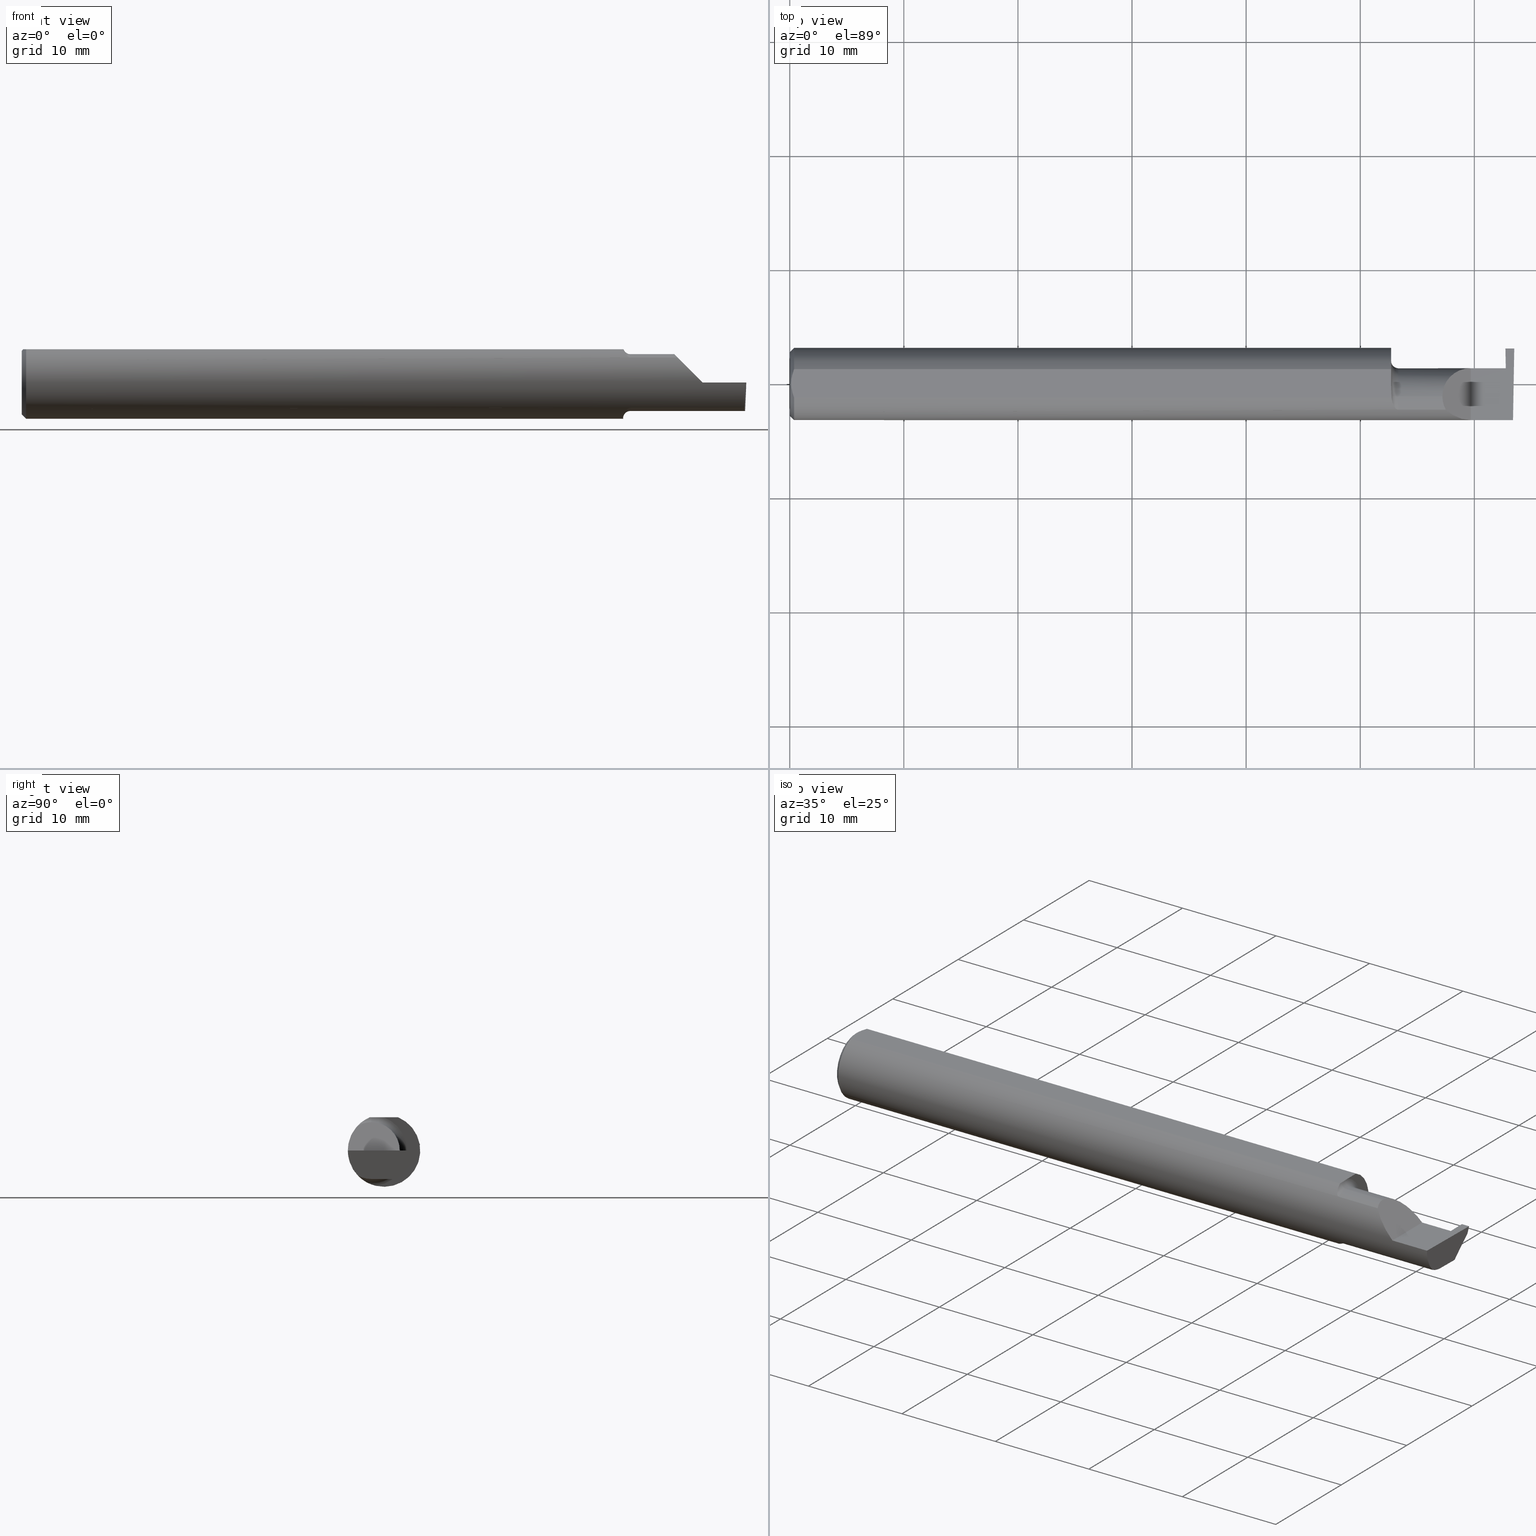
[diagram: canonical four-view strip — front | top / right | iso, engineering-drawing reading convention]
A machine part, canonical four-view strip (front | top / right | iso — engineering-drawing reading convention). The complete STEP part file that produces these views, byte-faithful:
ISO-10303-21;
HEADER;
FILE_DESCRIPTION (( 'STEP AP203' ),
    '1' );
FILE_NAME ('220815-GT030Q-6.STEP',
    '2024-07-12T17:48:11',
    ( '' ),
    ( '' ),
    'SwSTEP 2.0',
    'SolidWorks 2024',
    '' );
FILE_SCHEMA (( 'CONFIG_CONTROL_DESIGN' ));
ENDSEC;

DATA;
#1 = ORIENTED_EDGE ( 'NONE', *, *, #593, .T. ) ;
#2 = CARTESIAN_POINT ( 'NONE',  ( 2.496652745773396020, 0.07741163850316090667, -0.09800000000000001765 ) ) ;
#3 = CIRCLE ( 'NONE', #255, 0.02499999999999980016 ) ;
#4 = VECTOR ( 'NONE', #554, 39.37007874015748143 ) ;
#5 = CARTESIAN_POINT ( 'NONE',  ( 2.494536841675280670, -0.04385000000000003478, -0.09799999999999998990 ) ) ;
#6 = SECURITY_CLASSIFICATION_LEVEL ( 'unclassified' ) ;
#7 = ORIENTED_EDGE ( 'NONE', *, *, #681, .T. ) ;
#8 = CARTESIAN_POINT ( 'NONE',  ( 2.075756598855984070, -0.04385000000000000009, -0.1168961077196328247 ) ) ;
#9 = LINE ( 'NONE', #251, #777 ) ;
#10 = ADVANCED_FACE ( 'NONE', ( #249 ), #245, .F. ) ;
#11 = EDGE_CURVE ( 'NONE', #609, #748, #454, .T. ) ;
#12 = DIRECTION ( 'NONE',  ( 1.000000000000000000, 0.000000000000000000, 0.000000000000000000 ) ) ;
#13 = CARTESIAN_POINT ( 'NONE',  ( 2.469500000000000028, 0.1221499999999999808, -3.306546357697866753E-19 ) ) ;
#14 = CARTESIAN_POINT ( 'NONE',  ( 2.075000000000000178, -0.04385000000000001397, 0.000000000000000000 ) ) ;
#15 = CLOSED_SHELL ( 'NONE', ( #311, #567, #579, #297, #674, #427, #508, #46, #197, #208, #34, #768, #475, #93, #507, #10, #766, #174, #254, #397, #150, #631 ) ) ;
#16 = CARTESIAN_POINT ( 'NONE',  ( 2.076339737573316579, -0.04810771292169582075, 0.1148500000000000215 ) ) ;
#17 = VECTOR ( 'NONE', #231, 39.37007874015748143 ) ;
#18 = APPROVAL_PERSON_ORGANIZATION ( #608, #550, #473 ) ;
#19 = FACE_OUTER_BOUND ( 'NONE', #347, .T. ) ;
#20 = CARTESIAN_POINT ( 'NONE',  ( 2.350000000000000089, -0.1248500000000000026, 1.836970198721028825E-17 ) ) ;
#21 = CARTESIAN_POINT ( 'NONE',  ( 2.089990549600693637, -0.08554147198584190204, 0.09096407607062390044 ) ) ;
#22 = ORIENTED_EDGE ( 'NONE', *, *, #320, .T. ) ;
#23 = VERTEX_POINT ( 'NONE', #561 ) ;
#24 = CARTESIAN_POINT ( 'NONE',  ( 2.500000000000000000, 0.03988613728104772188, -0.09800000000000000377 ) ) ;
#25 = VERTEX_POINT ( 'NONE', #584 ) ;
#26 = CARTESIAN_POINT ( 'NONE',  ( 2.100000000000000089, -0.04385000000000000009, -0.1230000000000000121 ) ) ;
#27 = AXIS2_PLACEMENT_3D ( 'NONE', #523, #90, #640 ) ;
#28 = VECTOR ( 'NONE', #195, 39.37007874015748143 ) ;
#29 = CARTESIAN_POINT ( 'NONE',  ( 2.100000000000000089, -0.04385000000000001397, 0.000000000000000000 ) ) ;
#30 = ORIENTED_EDGE ( 'NONE', *, *, #559, .F. ) ;
#31 = FACE_OUTER_BOUND ( 'NONE', #270, .T. ) ;
#32 = EDGE_CURVE ( 'NONE', #383, #131, #612, .T. ) ;
#33 = EDGE_CURVE ( 'NONE', #406, #202, #39, .T. ) ;
#34 = ADVANCED_FACE ( 'NONE', ( #31 ), #514, .F. ) ;
#35 = ORIENTED_EDGE ( 'NONE', *, *, #626, .F. ) ;
#36 = FACE_OUTER_BOUND ( 'NONE', #451, .T. ) ;
#37 = CARTESIAN_POINT ( 'NONE',  ( 2.083278800716858115, -0.07573621487658313556, -0.09938639293507191275 ) ) ;
#38 = ORIENTED_EDGE ( 'NONE', *, *, #173, .T. ) ;
#39 = LINE ( 'NONE', #577, #417 ) ;
#40 = AXIS2_PLACEMENT_3D ( 'NONE', #331, #466, #161 ) ;
#41 = AXIS2_PLACEMENT_3D ( 'NONE', #464, #394, #341 ) ;
#42 = FACE_OUTER_BOUND ( 'NONE', #89, .T. ) ;
#43 = ORIENTED_EDGE ( 'NONE', *, *, #651, .F. ) ;
#44 = EDGE_CURVE ( 'NONE', #722, #424, #637, .T. ) ;
#45 = DIRECTION ( 'NONE',  ( 0.05230943362269020042, 0.0006086169641122230823, -0.9986307389317957695 ) ) ;
#46 = ADVANCED_FACE ( 'NONE', ( #328 ), #222, .F. ) ;
#47 = CARTESIAN_POINT ( 'NONE',  ( 2.292592929112563738, 0.05415000000000004532, 0.05740707088743669112 ) ) ;
#48 = ORIENTED_EDGE ( 'NONE', *, *, #710, .F. ) ;
#49 = CARTESIAN_POINT ( 'NONE',  ( 2.499132853025171297, 0.1117231085775382687, -0.02616302870350971019 ) ) ;
#50 = DIRECTION ( 'NONE',  ( 0.000000000000000000, 0.000000000000000000, 1.000000000000000000 ) ) ;
#51 = ORIENTED_EDGE ( 'NONE', *, *, #568, .F. ) ;
#52 = DIRECTION ( 'NONE',  ( 0.000000000000000000, -0.000000000000000000, 1.000000000000000000 ) ) ;
#53 = LINE ( 'NONE', #540, #135 ) ;
#54 = PERSON_AND_ORGANIZATION_ROLE ( 'design_supplier' ) ;
#55 = ORIENTED_EDGE ( 'NONE', *, *, #531, .F. ) ;
#56 = VECTOR ( 'NONE', #723, 39.37007874015748143 ) ;
#57 = DIRECTION ( 'NONE',  ( -1.000000000000000000, -0.000000000000000000, -0.000000000000000000 ) ) ;
#58 = AXIS2_PLACEMENT_3D ( 'NONE', #189, #52, #307 ) ;
#59 = DIRECTION ( 'NONE',  ( -0.000000000000000000, 1.000000000000000000, 0.000000000000000000 ) ) ;
#60 = EDGE_CURVE ( 'NONE', #742, #424, #517, .T. ) ;
#61 =( NAMED_UNIT ( * ) PLANE_ANGLE_UNIT ( ) SI_UNIT ( $, .RADIAN. ) );
#62 = ORIENTED_EDGE ( 'NONE', *, *, #543, .T. ) ;
#63 = CYLINDRICAL_SURFACE ( 'NONE', #639, 0.09800000000000000377 ) ;
#64 = DIRECTION ( 'NONE',  ( -1.000000000000000000, -0.000000000000000000, -0.000000000000000000 ) ) ;
#65 = CARTESIAN_POINT ( 'NONE',  ( 0.000000000000000000, 0.000000000000000000, 0.000000000000000000 ) ) ;
#66 = ORIENTED_EDGE ( 'NONE', *, *, #570, .T. ) ;
#67 = FACE_OUTER_BOUND ( 'NONE', #145, .T. ) ;
#68 = CARTESIAN_POINT ( 'NONE',  ( 2.075000000000000178, -0.1248500000000000165, 0.1148500000000000076 ) ) ;
#69 = PERSON_AND_ORGANIZATION ( #703, #599 ) ;
#70 = ORIENTED_EDGE ( 'NONE', *, *, #162, .T. ) ;
#71 = LINE ( 'NONE', #358, #17 ) ;
#72 = CIRCLE ( 'NONE', #484, 0.1248500000000000026 ) ;
#73 = VECTOR ( 'NONE', #88, 39.37007874015748854 ) ;
#74 = DIRECTION ( 'NONE',  ( -1.000000000000000000, -0.000000000000000000, -0.000000000000000000 ) ) ;
#75 = EDGE_CURVE ( 'NONE', #541, #632, #526, .T. ) ;
#76 = DIRECTION ( 'NONE',  ( 1.000000000000000000, 0.000000000000000000, 0.000000000000000000 ) ) ;
#77 = DIRECTION ( 'NONE',  ( -1.000000000000000000, -0.000000000000000000, -0.000000000000000000 ) ) ;
#78 = LINE ( 'NONE', #24, #672 ) ;
#79 = CARTESIAN_POINT ( 'NONE',  ( 2.076090261609497389, -0.02916889382056604002, 0.1148499999999999938 ) ) ;
#80 = DIRECTION ( 'NONE',  ( 0.02618093032612054533, 0.000000000000000000, 0.9996572206948034500 ) ) ;
#81 = CC_DESIGN_APPROVAL ( #747, ( #203 ) ) ;
#82 = AXIS2_PLACEMENT_3D ( 'NONE', #401, #396, #580 ) ;
#83 = VECTOR ( 'NONE', #728, 39.37007874015748854 ) ;
#84 = ORIENTED_EDGE ( 'NONE', *, *, #129, .T. ) ;
#85 = CARTESIAN_POINT ( 'NONE',  ( 2.499227245409318954, 0.1138861372810479888, -0.02400000000000000050 ) ) ;
#86 = ORIENTED_EDGE ( 'NONE', *, *, #593, .F. ) ;
#87 = EDGE_LOOP ( 'NONE', ( #702, #55, #172, #758, #187, #86, #351 ) ) ;
#88 = DIRECTION ( 'NONE',  ( -0.03699114979479756204, 0.7066228325057372084, 0.7066228325057346549 ) ) ;
#89 = EDGE_LOOP ( 'NONE', ( #770, #479, #578, #261 ) ) ;
#90 = DIRECTION ( 'NONE',  ( 0.9991632577875578791, -2.492636860402691441E-05, 0.04089967806756397012 ) ) ;
#91 = DIRECTION ( 'NONE',  ( -1.000000000000000000, -0.000000000000000000, -0.000000000000000000 ) ) ;
#92 = VERTEX_POINT ( 'NONE', #335 ) ;
#93 = ADVANCED_FACE ( 'NONE', ( #167 ), #645, .T. ) ;
#94 = CARTESIAN_POINT ( 'NONE',  ( 0.004999999999999990563, 1.454187663965904829E-17, 0.1148500000000000076 ) ) ;
#95 = AXIS2_PLACEMENT_3D ( 'NONE', #121, #57, #476 ) ;
#96 = CARTESIAN_POINT ( 'NONE',  ( 2.494033449660867152, -0.09015216647662482874, -0.08637192471845768493 ) ) ;
#97 = CARTESIAN_POINT ( 'NONE',  ( 2.287163018370355072, -0.1127002472623169216, 0.06283698162964553025 ) ) ;
#98 = ORIENTED_EDGE ( 'NONE', *, *, #510, .F. ) ;
#99 = DIRECTION ( 'NONE',  ( 0.000000000000000000, 0.000000000000000000, 1.000000000000000000 ) ) ;
#100 = CARTESIAN_POINT ( 'NONE',  ( 2.495997960279815686, 0.03988613728104775658, -0.09799999999999996214 ) ) ;
#101 = ORIENTED_EDGE ( 'NONE', *, *, #343, .T. ) ;
#102 = CARTESIAN_POINT ( 'NONE',  ( 2.317406910344188997, -0.1248500000000000304, 0.03259308965581166062 ) ) ;
#103 = CC_DESIGN_PERSON_AND_ORGANIZATION_ASSIGNMENT ( #130, #54, ( #355 ) ) ;
#104 = AXIS2_PLACEMENT_3D ( 'NONE', #603, #536, #359 ) ;
#105 = CARTESIAN_POINT ( 'NONE',  ( 2.080064983703085346, -0.06736177101644112708, -0.1052426774175050789 ) ) ;
#106 = ORIENTED_EDGE ( 'NONE', *, *, #490, .T. ) ;
#107 = CARTESIAN_POINT ( 'NONE',  ( 2.474734127201016598, 0.1222413620301363024, -0.1499086240528643976 ) ) ;
#108 =( CONVERSION_BASED_UNIT ( 'INCH', #509 ) LENGTH_UNIT ( ) NAMED_UNIT ( #440 ) );
#109 = ORIENTED_EDGE ( 'NONE', *, *, #733, .T. ) ;
#110 = DIRECTION ( 'NONE',  ( -0.03489418134011375294, -0.0006090802009084594817, 0.9993908270190957621 ) ) ;
#111 = PRODUCT ( '220815-GT030Q-6', '220815-GT030Q-6', '', ( #182 ) ) ;
#112 = DATE_TIME_ROLE ( 'classification_date' ) ;
#113 = ORIENTED_EDGE ( 'NONE', *, *, #676, .F. ) ;
#114 = APPLICATION_CONTEXT ( 'configuration controlled 3d designs of mechanical parts and assemblies' ) ;
#115 = CARTESIAN_POINT ( 'NONE',  ( 0.009415874254822407391, -0.03313958207962815206, 0.1148500000000000076 ) ) ;
#116 = EDGE_CURVE ( 'NONE', #201, #337, #216, .T. ) ;
#117 = CARTESIAN_POINT ( 'NONE',  ( 2.474353376795600301, -0.04385000000000004172, -0.09799999999999998990 ) ) ;
#118 = SHAPE_DEFINITION_REPRESENTATION ( #773, #127 ) ;
#119 = ORIENTED_EDGE ( 'NONE', *, *, #436, .F. ) ;
#120 = VECTOR ( 'NONE', #781, 39.37007874015748854 ) ;
#121 = CARTESIAN_POINT ( 'NONE',  ( 0.000000000000000000, 0.000000000000000000, 0.000000000000000000 ) ) ;
#122 = LOCAL_TIME ( 10, 48, 11.00000000000000000, #304 ) ;
#123 = DIRECTION ( 'NONE',  ( 1.000000000000000000, 0.000000000000000000, 0.000000000000000000 ) ) ;
#124 = APPROVAL_ROLE ( '' ) ;
#125 = ORIENTED_EDGE ( 'NONE', *, *, #429, .T. ) ;
#126 = LINE ( 'NONE', #590, #583 ) ;
#127 = ADVANCED_BREP_SHAPE_REPRESENTATION ( '220815-GT030Q-6', ( #719, #258 ), #158 ) ;
#128 = CARTESIAN_POINT ( 'NONE',  ( 2.469500000000000028, 0.05414999123725664637, -4.144270477499208333E-05 ) ) ;
#129 = EDGE_CURVE ( 'NONE', #541, #538, #597, .T. ) ;
#130 = PERSON_AND_ORGANIZATION ( #703, #599 ) ;
#131 = VERTEX_POINT ( 'NONE', #753 ) ;
#132 = CARTESIAN_POINT ( 'NONE',  ( 2.469396089435561326, 0.1230242573026207736, 0.002539027568158831304 ) ) ;
#133 = CARTESIAN_POINT ( 'NONE',  ( 2.494380489674781209, -0.1999019447116721915, 6.881915332554903690E-19 ) ) ;
#134 = CARTESIAN_POINT ( 'NONE',  ( 2.470385764151949104, 0.1157284569920692952, -0.02215768028897870112 ) ) ;
#135 = VECTOR ( 'NONE', #233, 39.37007874015748143 ) ;
#136 = CARTESIAN_POINT ( 'NONE',  ( 2.076362484150212850, -0.04555293709188857482, 0.1148500000000000076 ) ) ;
#137 = CARTESIAN_POINT ( 'NONE',  ( 2.284749999999999837, -0.09015216647662482874, 0.08637192471845768493 ) ) ;
#138 = CARTESIAN_POINT ( 'NONE',  ( 2.076365755776839794, -0.04385000000000001397, 0.1148500000000000076 ) ) ;
#139 = DIRECTION ( 'NONE',  ( -0.03699114979479620896, 0.7066228325057373194, 0.7066228325057347659 ) ) ;
#140 = EDGE_CURVE ( 'NONE', #718, #609, #271, .T. ) ;
#141 = ORIENTED_EDGE ( 'NONE', *, *, #570, .F. ) ;
#142 = CARTESIAN_POINT ( 'NONE',  ( 2.252000000000000668, -0.04385000000000001397, 0.09800000000000000377 ) ) ;
#143 = ORIENTED_EDGE ( 'NONE', *, *, #618, .T. ) ;
#144 = AXIS2_PLACEMENT_3D ( 'NONE', #223, #91, #325 ) ;
#145 = EDGE_LOOP ( 'NONE', ( #300, #101, #377, #533, #62, #727, #714 ) ) ;
#146 = CARTESIAN_POINT ( 'NONE',  ( 0.000000000000000000, 1.437123018799419134E-17, 0.1098500000000000032 ) ) ;
#147 = ORIENTED_EDGE ( 'NONE', *, *, #684, .F. ) ;
#148 = ORIENTED_EDGE ( 'NONE', *, *, #227, .F. ) ;
#149 = EDGE_CURVE ( 'NONE', #287, #406, #153, .T. ) ;
#150 = ADVANCED_FACE ( 'NONE', ( #282 ), #390, .F. ) ;
#151 = DIRECTION ( 'NONE',  ( 1.000000000000000000, -0.000000000000000000, -0.000000000000000000 ) ) ;
#152 = ORIENTED_EDGE ( 'NONE', *, *, #149, .T. ) ;
#153 = LINE ( 'NONE', #463, #749 ) ;
#154 = PLANE ( 'NONE',  #246 ) ;
#155 = ORIENTED_EDGE ( 'NONE', *, *, #710, .T. ) ;
#156 = DIRECTION ( 'NONE',  ( 0.000000000000000000, 0.000000000000000000, 1.000000000000000000 ) ) ;
#157 = AXIS2_PLACEMENT_3D ( 'NONE', #783, #64, #238 ) ;
#158 =( GEOMETRIC_REPRESENTATION_CONTEXT ( 3 ) GLOBAL_UNCERTAINTY_ASSIGNED_CONTEXT ( ( #403 ) ) GLOBAL_UNIT_ASSIGNED_CONTEXT ( ( #108, #61, #408 ) ) REPRESENTATION_CONTEXT ( 'NONE', 'WORKASPACE' ) );
#159 = CARTESIAN_POINT ( 'NONE',  ( 2.076365755776839794, -0.04385000000000001397, 0.1148500000000000076 ) ) ;
#160 = VERTEX_POINT ( 'NONE', #569 ) ;
#161 = DIRECTION ( 'NONE',  ( 0.000000000000000000, 0.000000000000000000, 1.000000000000000000 ) ) ;
#162 = EDGE_CURVE ( 'NONE', #502, #383, #3, .T. ) ;
#163 = CARTESIAN_POINT ( 'NONE',  ( 2.494256244271084721, -0.1126860773865890480, -0.06285177167860772629 ) ) ;
#164 = ORIENTED_EDGE ( 'NONE', *, *, #786, .F. ) ;
#165 = DIRECTION ( 'NONE',  ( -1.000000000000000000, 0.000000000000000000, 1.224646799147352221E-16 ) ) ;
#166 = ORIENTED_EDGE ( 'NONE', *, *, #706, .F. ) ;
#167 = FACE_OUTER_BOUND ( 'NONE', #775, .T. ) ;
#168 = CIRCLE ( 'NONE', #144, 0.1248500000000000026 ) ;
#169 = ORIENTED_EDGE ( 'NONE', *, *, #744, .T. ) ;
#170 = CARTESIAN_POINT ( 'NONE',  ( 2.494082244196984099, -0.07583965973232818791, -0.09404455760388209795 ) ) ;
#171 = CALENDAR_DATE ( 2024, 12, 7 ) ;
#172 = ORIENTED_EDGE ( 'NONE', *, *, #265, .F. ) ;
#173 = EDGE_CURVE ( 'NONE', #382, #201, #689, .T. ) ;
#174 = ADVANCED_FACE ( 'NONE', ( #36 ), #225, .F. ) ;
#175 = CARTESIAN_POINT ( 'NONE',  ( 2.494033449660867152, -0.09015216647662482874, -0.08637192471845768493 ) ) ;
#176 = CARTESIAN_POINT ( 'NONE',  ( 2.075000000000000178, 0.000000000000000000, 0.000000000000000000 ) ) ;
#177 = EDGE_CURVE ( 'NONE', #287, #646, #534, .T. ) ;
#178 = CALENDAR_DATE ( 2024, 12, 7 ) ;
#179 = EDGE_LOOP ( 'NONE', ( #164, #409, #595, #166 ) ) ;
#180 = CARTESIAN_POINT ( 'NONE',  ( 2.470482208140545755, 0.05416464901750963484, -0.02403639734835130368 ) ) ;
#181 = CARTESIAN_POINT ( 'NONE',  ( 2.350000000000000089, -0.2000000000000000111, 1.836970198721028825E-17 ) ) ;
#182 = MECHANICAL_CONTEXT ( 'NONE', #114, 'mechanical' ) ;
#183 = EDGE_LOOP ( 'NONE', ( #155, #765, #119, #106 ) ) ;
#184 = VECTOR ( 'NONE', #371, 39.37007874015748854 ) ;
#185 = DIRECTION ( 'NONE',  ( 1.000000000000000000, 0.000000000000000000, 0.000000000000000000 ) ) ;
#186 = DIRECTION ( 'NONE',  ( 1.000000000000000000, 0.000000000000000000, 0.000000000000000000 ) ) ;
#187 = ORIENTED_EDGE ( 'NONE', *, *, #388, .F. ) ;
#188 = EDGE_CURVE ( 'NONE', #209, #281, #656, .T. ) ;
#189 = CARTESIAN_POINT ( 'NONE',  ( 2.500000000000000000, -0.1248500000000000165, 0.1148500000000000076 ) ) ;
#190 = DIRECTION ( 'NONE',  ( -0.7071067811865459074, 0.000000000000000000, 0.7071067811865492381 ) ) ;
#191 = DIRECTION ( 'NONE',  ( -0.03042981077198583101, -0.3254173858243484818, -0.9450807116958995779 ) ) ;
#192 = CARTESIAN_POINT ( 'NONE',  ( 2.076365755776839350, -0.03650543323727815925, 0.1148500000000000215 ) ) ;
#193 = CARTESIAN_POINT ( 'NONE',  ( 2.090875432832430825, -0.08647060418110404101, -0.09007670266896510014 ) ) ;
#194 = VECTOR ( 'NONE', #633, 39.37007874015748143 ) ;
#195 = DIRECTION ( 'NONE',  ( 0.7071067811865476838, 8.659560562354930393E-17, 0.7071067811865473507 ) ) ;
#196 = CARTESIAN_POINT ( 'NONE',  ( 2.470385764151949548, 0.1157284569920692535, -0.02215768028897875316 ) ) ;
#197 = ADVANCED_FACE ( 'NONE', ( #788 ), #716, .F. ) ;
#198 = DIRECTION ( 'NONE',  ( 0.000000000000000000, -0.7071067811865462405, 0.7071067811865487940 ) ) ;
#199 = CARTESIAN_POINT ( 'NONE',  ( 2.075000000000000622, -0.04385000000000001397, 0.000000000000000000 ) ) ;
#200 = ORIENTED_EDGE ( 'NONE', *, *, #429, .F. ) ;
#201 = VERTEX_POINT ( 'NONE', #725 ) ;
#202 = VERTEX_POINT ( 'NONE', #648 ) ;
#203 = SECURITY_CLASSIFICATION ( '', '', #6 ) ;
#204 = VECTOR ( 'NONE', #59, 39.37007874015748143 ) ;
#205 = TOROIDAL_SURFACE ( 'NONE', #518, 0.1230000000000000121, 0.02499999999999980016 ) ;
#206 = EDGE_LOOP ( 'NONE', ( #364, #22, #740, #576 ) ) ;
#207 = CARTESIAN_POINT ( 'NONE',  ( 2.493072779947982820, -0.1248043149033065402, -0.09996577117162359916 ) ) ;
#208 = ADVANCED_FACE ( 'NONE', ( #544 ), #279, .T. ) ;
#209 = VERTEX_POINT ( 'NONE', #527 ) ;
#210 = CARTESIAN_POINT ( 'NONE',  ( 3.749399456654637998E-32, -0.1248500000000000026, 3.061616997868380676E-16 ) ) ;
#211 = CC_DESIGN_DATE_AND_TIME_ASSIGNMENT ( #653, #112, ( #203 ) ) ;
#212 = CARTESIAN_POINT ( 'NONE',  ( 2.474356049968028604, 0.03988613728104627859, -0.09800000000000050338 ) ) ;
#213 = ORIENTED_EDGE ( 'NONE', *, *, #369, .F. ) ;
#214 = DIRECTION ( 'NONE',  ( 0.01742050049977531684, -0.9998482515673753346, -2.130797594924657633E-18 ) ) ;
#215 = CARTESIAN_POINT ( 'NONE',  ( 2.078850144156349611, -0.06295012366509135371, -0.1079450122012246133 ) ) ;
#216 = LINE ( 'NONE', #506, #709 ) ;
#217 = LOCAL_TIME ( 10, 48, 11.00000000000000000, #423 ) ;
#218 = ORIENTED_EDGE ( 'NONE', *, *, #618, .F. ) ;
#219 = DIRECTION ( 'NONE',  ( 0.000000000000000000, -1.000000000000000000, 0.000000000000000000 ) ) ;
#220 = CARTESIAN_POINT ( 'NONE',  ( 2.076929090759344287, -0.05370719728932715764, -0.1128289886859672464 ) ) ;
#221 = EDGE_LOOP ( 'NONE', ( #439, #566, #762 ) ) ;
#222 = PLANE ( 'NONE',  #737 ) ;
#223 = CARTESIAN_POINT ( 'NONE',  ( 0.01499999999999999944, 0.000000000000000000, 0.000000000000000000 ) ) ;
#224 = EDGE_LOOP ( 'NONE', ( #470, #152, #236, #218, #625 ) ) ;
#225 = PLANE ( 'NONE',  #546 ) ;
#226 = LOCAL_TIME ( 10, 48, 11.00000000000000000, #713 ) ;
#227 = EDGE_CURVE ( 'NONE', #521, #516, #619, .T. ) ;
#228 = AXIS2_PLACEMENT_3D ( 'NONE', #286, #186, #421 ) ;
#229 = APPROVAL_STATUS ( 'not_yet_approved' ) ;
#230 = ORIENTED_EDGE ( 'NONE', *, *, #33, .F. ) ;
#231 = DIRECTION ( 'NONE',  ( -1.000000000000000000, -0.000000000000000000, -0.000000000000000000 ) ) ;
#232 = EDGE_CURVE ( 'NONE', #385, #281, #72, .T. ) ;
#233 = DIRECTION ( 'NONE',  ( 1.000000000000000000, 0.000000000000000000, 0.000000000000000000 ) ) ;
#234 =( BOUNDED_CURVE ( )  B_SPLINE_CURVE ( 3, ( #96, #163, #329, #769 ),
 .UNSPECIFIED., .F., .F. ) 
 B_SPLINE_CURVE_WITH_KNOTS ( ( 4, 4 ),
 ( 0.2190942387645155864, 0.9826237902196512941 ),
 .UNSPECIFIED. ) 
 CURVE ( )  GEOMETRIC_REPRESENTATION_ITEM ( )  RATIONAL_B_SPLINE_CURVE ( ( 1.000000000000000000, 0.9520057322288819623, 0.9520057322288819623, 1.000000000000000000 ) ) 
 REPRESENTATION_ITEM ( '' )  );
#235 = DATE_AND_TIME ( #779, #277 ) ;
#236 = ORIENTED_EDGE ( 'NONE', *, *, #33, .T. ) ;
#237 = DIRECTION ( 'NONE',  ( -0.000000000000000000, 2.817424862263050982E-16, 1.000000000000000000 ) ) ;
#238 = DIRECTION ( 'NONE',  ( 0.000000000000000000, 0.000000000000000000, 1.000000000000000000 ) ) ;
#239 = PERSON_AND_ORGANIZATION_ROLE ( 'creator' ) ;
#240 = ORIENTED_EDGE ( 'NONE', *, *, #705, .F. ) ;
#241 = FACE_OUTER_BOUND ( 'NONE', #444, .T. ) ;
#242 = CARTESIAN_POINT ( 'NONE',  ( 2.350000000000000089, -0.2000000000000000111, 1.836970198721028825E-17 ) ) ;
#243 = AXIS2_PLACEMENT_3D ( 'NONE', #575, #519, #393 ) ;
#244 = APPROVAL_STATUS ( 'not_yet_approved' ) ;
#245 = PLANE ( 'NONE',  #327 ) ;
#246 = AXIS2_PLACEMENT_3D ( 'NONE', #581, #572, #276 ) ;
#247 = DIRECTION ( 'NONE',  ( 0.000000000000000000, 0.000000000000000000, 1.000000000000000000 ) ) ;
#248 = DIRECTION ( 'NONE',  ( 0.000000000000000000, 0.000000000000000000, -1.000000000000000000 ) ) ;
#249 = FACE_OUTER_BOUND ( 'NONE', #667, .T. ) ;
#250 = LINE ( 'NONE', #730, #458 ) ;
#251 = CARTESIAN_POINT ( 'NONE',  ( 2.284749999999999837, -0.09015216647662482874, -0.08637192471845768493 ) ) ;
#252 = DIRECTION ( 'NONE',  ( -1.000000000000000000, -0.000000000000000000, -0.000000000000000000 ) ) ;
#253 = PLANE ( 'NONE',  #443 ) ;
#254 = ADVANCED_FACE ( 'NONE', ( #488 ), #468, .F. ) ;
#255 = AXIS2_PLACEMENT_3D ( 'NONE', #26, #447, #511 ) ;
#256 = CARTESIAN_POINT ( 'NONE',  ( 2.350000000000000089, -0.1248500000000000026, 1.836970198721028825E-17 ) ) ;
#257 = VECTOR ( 'NONE', #407, 39.37007874015748854 ) ;
#258 = AXIS2_PLACEMENT_3D ( 'NONE', #65, #50, #299 ) ;
#259 = DIRECTION ( 'NONE',  ( -1.000000000000000000, -0.000000000000000000, -0.000000000000000000 ) ) ;
#260 = DIRECTION ( 'NONE',  ( 0.000000000000000000, 0.000000000000000000, -1.000000000000000000 ) ) ;
#261 = ORIENTED_EDGE ( 'NONE', *, *, #60, .T. ) ;
#262 = DIRECTION ( 'NONE',  ( -1.000000000000000000, -0.000000000000000000, -0.000000000000000000 ) ) ;
#263 = ORIENTED_EDGE ( 'NONE', *, *, #490, .F. ) ;
#264 = ORIENTED_EDGE ( 'NONE', *, *, #332, .F. ) ;
#265 = EDGE_CURVE ( 'NONE', #624, #685, #778, .T. ) ;
#266 = LINE ( 'NONE', #134, #73 ) ;
#267 = CC_DESIGN_PERSON_AND_ORGANIZATION_ASSIGNMENT ( #717, #239, ( #355 ) ) ;
#268 = DIRECTION ( 'NONE',  ( -1.000000000000000000, -1.575186606422338777E-15, 1.224646799147352221E-16 ) ) ;
#269 = DIRECTION ( 'NONE',  ( 0.000000000000000000, 0.000000000000000000, 1.000000000000000000 ) ) ;
#270 = EDGE_LOOP ( 'NONE', ( #442, #474 ) ) ;
#271 = LINE ( 'NONE', #210, #338 ) ;
#272 = CARTESIAN_POINT ( 'NONE',  ( 2.263628075281542529, -0.09015216647662421812, 0.08637192471845822617 ) ) ;
#273 = ORIENTED_EDGE ( 'NONE', *, *, #744, .F. ) ;
#274 = CARTESIAN_POINT ( 'NONE',  ( 2.263628075281542529, -0.09015216647662421812, 0.08637192471845822617 ) ) ;
#275 = EDGE_CURVE ( 'NONE', #202, #201, #652, .T. ) ;
#276 = DIRECTION ( 'NONE',  ( 0.000000000000000000, -0.3255681544571576991, -0.9455185755993165131 ) ) ;
#277 = LOCAL_TIME ( 10, 48, 11.00000000000000000, #532 ) ;
#278 = CARTESIAN_POINT ( 'NONE',  ( 2.500000000000000000, -0.2000000000000000111, 0.000000000000000000 ) ) ;
#279 = CONICAL_SURFACE ( 'NONE', #228, 0.1248500000000000026, 0.7853981633974480570 ) ;
#280 = CARTESIAN_POINT ( 'NONE',  ( 2.252000000000000668, -0.04385000000000001397, 0.09800000000000000377 ) ) ;
#281 = VERTEX_POINT ( 'NONE', #349 ) ;
#282 = FACE_OUTER_BOUND ( 'NONE', #699, .T. ) ;
#283 = CARTESIAN_POINT ( 'NONE',  ( 2.252000000000000668, -0.04385000000000001397, 0.09800000000000000377 ) ) ;
#284 = ORIENTED_EDGE ( 'NONE', *, *, #162, .F. ) ;
#285 = EDGE_CURVE ( 'NONE', #23, #337, #53, .T. ) ;
#286 = CARTESIAN_POINT ( 'NONE',  ( 0.01499999999999999944, 0.000000000000000000, 0.000000000000000000 ) ) ;
#287 = VERTEX_POINT ( 'NONE', #411 ) ;
#288 = CARTESIAN_POINT ( 'NONE',  ( 2.100000000000000089, -0.04385000000000001397, 0.000000000000000000 ) ) ;
#289 = DIRECTION ( 'NONE',  ( 1.575111677621395008E-15, -0.9999998142845093474, -0.0006094513490878162741 ) ) ;
#290 = VECTOR ( 'NONE', #74, 39.37007874015748143 ) ;
#291 = APPROVAL_ROLE ( '' ) ;
#292 = ORIENTED_EDGE ( 'NONE', *, *, #531, .T. ) ;
#293 = LINE ( 'NONE', #180, #660 ) ;
#294 = FACE_OUTER_BOUND ( 'NONE', #399, .T. ) ;
#295 = VERTEX_POINT ( 'NONE', #117 ) ;
#296 = CARTESIAN_POINT ( 'NONE',  ( 0.01195732443765547617, -0.04120008761723503027, 0.1148500000000000076 ) ) ;
#297 = ADVANCED_FACE ( 'NONE', ( #353 ), #402, .F. ) ;
#298 = CARTESIAN_POINT ( 'NONE',  ( 2.075000000000000178, -0.04385000000000001397, 0.09800000000000000377 ) ) ;
#299 = DIRECTION ( 'NONE',  ( 1.000000000000000000, 0.000000000000000000, 0.000000000000000000 ) ) ;
#300 = ORIENTED_EDGE ( 'NONE', *, *, #705, .T. ) ;
#301 = CARTESIAN_POINT ( 'NONE',  ( 2.494536841675280670, -0.04385000000000003478, -0.09799999999999998990 ) ) ;
#302 = DIRECTION ( 'NONE',  ( -0.7071067811865492381, 0.000000000000000000, -0.7071067811865459074 ) ) ;
#303 = AXIS2_PLACEMENT_3D ( 'NONE', #242, #302, #190 ) ;
#304 = COORDINATED_UNIVERSAL_TIME_OFFSET ( 8, 0, .BEHIND. ) ;
#305 = ORIENTED_EDGE ( 'NONE', *, *, #320, .F. ) ;
#306 = VECTOR ( 'NONE', #384, 39.37007874015748143 ) ;
#307 = DIRECTION ( 'NONE',  ( 1.000000000000000000, 0.000000000000000000, -0.000000000000000000 ) ) ;
#308 = FACE_OUTER_BOUND ( 'NONE', #224, .T. ) ;
#309 = CARTESIAN_POINT ( 'NONE',  ( 2.474354867654527723, 0.002850604310161259161, -0.09800000000000005929 ) ) ;
#310 = CARTESIAN_POINT ( 'NONE',  ( 0.01499999999999999944, 1.528971528735470422E-17, 0.1248500000000000026 ) ) ;
#311 = ADVANCED_FACE ( 'NONE', ( #294 ), #721, .T. ) ;
#312 = EDGE_CURVE ( 'NONE', #609, #23, #477, .T. ) ;
#313 =( BOUNDED_CURVE ( )  B_SPLINE_CURVE ( 3, ( #272, #387, #698, #280 ),
 .UNSPECIFIED., .F., .T. ) 
 B_SPLINE_CURVE_WITH_KNOTS ( ( 4, 4 ),
 ( 5.791092865617133434, 6.283185307179586232 ),
 .UNSPECIFIED. ) 
 CURVE ( )  GEOMETRIC_REPRESENTATION_ITEM ( )  RATIONAL_B_SPLINE_CURVE ( ( 1.000000000000000000, 0.9799220177372784946, 0.9799220177372784946, 1.000000000000000000 ) ) 
 REPRESENTATION_ITEM ( '' )  );
#314 = PLANE ( 'NONE',  #530 ) ;
#315 = CARTESIAN_POINT ( 'NONE',  ( 2.075000000000000622, 0.0001781444078671173391, 0.1148500000000000076 ) ) ;
#316 = LINE ( 'NONE', #196, #547 ) ;
#317 = AXIS2_PLACEMENT_3D ( 'NONE', #745, #262, #432 ) ;
#318 = CARTESIAN_POINT ( 'NONE',  ( 2.086053217927678283, -0.08094812012684959868, 0.09514231764822832227 ) ) ;
#319 = ORIENTED_EDGE ( 'NONE', *, *, #129, .F. ) ;
#320 = EDGE_CURVE ( 'NONE', #654, #424, #661, .T. ) ;
#321 = ORIENTED_EDGE ( 'NONE', *, *, #275, .T. ) ;
#322 = CARTESIAN_POINT ( 'NONE',  ( 2.097259638933032022, -0.09015216647662444016, -0.08637192471845808739 ) ) ;
#323 = ORIENTED_EDGE ( 'NONE', *, *, #285, .T. ) ;
#324 = CARTESIAN_POINT ( 'NONE',  ( 0.01499999999999987454, 0.04895916665957496944, 0.1148500000000000076 ) ) ;
#325 = DIRECTION ( 'NONE',  ( 0.000000000000000000, 0.000000000000000000, 1.000000000000000000 ) ) ;
#326 = VERTEX_POINT ( 'NONE', #430 ) ;
#327 = AXIS2_PLACEMENT_3D ( 'NONE', #486, #198, #435 ) ;
#328 = FACE_OUTER_BOUND ( 'NONE', #438, .T. ) ;
#329 = CARTESIAN_POINT ( 'NONE',  ( 2.494835769263151537, -0.1248351010429638308, -0.03262966116142157480 ) ) ;
#330 = EDGE_LOOP ( 'NONE', ( #284, #169, #43, #462, #601, #604 ) ) ;
#331 = CARTESIAN_POINT ( 'NONE',  ( 2.100000000000000089, -0.04385000000000001397, 0.000000000000000000 ) ) ;
#332 = EDGE_CURVE ( 'NONE', #680, #632, #492, .T. ) ;
#333 = CARTESIAN_POINT ( 'NONE',  ( 2.089311064734461265, -0.08485061678078631431, -0.09161469295857084527 ) ) ;
#334 = ORIENTED_EDGE ( 'NONE', *, *, #732, .T. ) ;
#335 = CARTESIAN_POINT ( 'NONE',  ( 2.500000000000000444, 0.1221499999999999808, 1.947508823608312588E-17 ) ) ;
#336 = CARTESIAN_POINT ( 'NONE',  ( 2.075242610568498236, -0.03840785182185595115, -0.1189375631818110762 ) ) ;
#337 = VERTEX_POINT ( 'NONE', #433 ) ;
#338 = VECTOR ( 'NONE', #643, 39.37007874015748143 ) ;
#339 = DIRECTION ( 'NONE',  ( -7.219510806010321669E-16, 0.9999998142845092364, 0.0006094513490878469570 ) ) ;
#340 = AXIS2_PLACEMENT_3D ( 'NONE', #199, #628, #499 ) ;
#341 = DIRECTION ( 'NONE',  ( 0.000000000000000000, 0.000000000000000000, 1.000000000000000000 ) ) ;
#342 = ORIENTED_EDGE ( 'NONE', *, *, #275, .F. ) ;
#343 = EDGE_CURVE ( 'NONE', #160, #722, #481, .T. ) ;
#344 = DIRECTION ( 'NONE',  ( 0.9992391710281357531, 0.01740988840156782944, 0.03489949668475364475 ) ) ;
#345 = EDGE_CURVE ( 'NONE', #722, #209, #373, .T. ) ;
#346 = DATE_TIME_ROLE ( 'creation_date' ) ;
#347 = EDGE_LOOP ( 'NONE', ( #51, #467, #360, #84, #147 ) ) ;
#348 = PLANE ( 'NONE',  #58 ) ;
#349 = CARTESIAN_POINT ( 'NONE',  ( 2.075000000000000178, 0.04895916665957496944, 0.1148500000000000076 ) ) ;
#350 = PERSON_AND_ORGANIZATION ( #703, #599 ) ;
#351 = ORIENTED_EDGE ( 'NONE', *, *, #732, .F. ) ;
#352 = DIRECTION ( 'NONE',  ( -1.000000000000000000, -0.000000000000000000, -0.000000000000000000 ) ) ;
#353 = FACE_OUTER_BOUND ( 'NONE', #330, .T. ) ;
#354 = AXIS2_PLACEMENT_3D ( 'NONE', #549, #542, #247 ) ;
#355 = PRODUCT_DEFINITION_FORMATION_WITH_SPECIFIED_SOURCE ( 'ANY', '', #111, .NOT_KNOWN. ) ;
#356 = PERSON_AND_ORGANIZATION ( #703, #599 ) ;
#357 = ORIENTED_EDGE ( 'NONE', *, *, #177, .F. ) ;
#358 = CARTESIAN_POINT ( 'NONE',  ( 2.075000000000000178, -0.04385000000000000703, -0.09800000000000000377 ) ) ;
#359 = DIRECTION ( 'NONE',  ( 0.000000000000000000, 0.000000000000000000, 1.000000000000000000 ) ) ;
#360 = ORIENTED_EDGE ( 'NONE', *, *, #75, .F. ) ;
#361 = LINE ( 'NONE', #596, #56 ) ;
#362 = DIRECTION ( 'NONE',  ( 0.000000000000000000, 0.0006094513490878161657, -0.9999998142845092364 ) ) ;
#363 = PERSON_AND_ORGANIZATION_ROLE ( 'creator' ) ;
#364 = ORIENTED_EDGE ( 'NONE', *, *, #786, .T. ) ;
#365 = CARTESIAN_POINT ( 'NONE',  ( 0.01499999999999999944, -0.04895916665957456698, 0.1148500000000000076 ) ) ;
#366 = CARTESIAN_POINT ( 'NONE',  ( 2.075000000000000178, -0.007185469346090044528, 0.1148500000000000076 ) ) ;
#367 = AXIS2_PLACEMENT_3D ( 'NONE', #107, #344, #587 ) ;
#368 = LINE ( 'NONE', #137, #4 ) ;
#369 = EDGE_CURVE ( 'NONE', #516, #295, #555, .T. ) ;
#370 = CARTESIAN_POINT ( 'NONE',  ( 2.100000000000000089, -0.04385000000000000009, -0.09800000000000000377 ) ) ;
#371 = DIRECTION ( 'NONE',  ( 0.02617296143184116158, -0.0004568507411563386858, 0.9996573249755575929 ) ) ;
#372 = CARTESIAN_POINT ( 'NONE',  ( 2.470482208140545310, 0.05416464901751170957, -0.02403639734835130368 ) ) ;
#373 = B_SPLINE_CURVE_WITH_KNOTS ( 'NONE', 3,
 ( #138, #192, #79, #553, #366, #315 ),
 .UNSPECIFIED., .F., .F.,
 ( 4, 2, 4 ),
 ( 0.009485158816280120364, 0.01004274199597734486, 0.01060032517567456936 ),
 .UNSPECIFIED. ) ;
#374 = CARTESIAN_POINT ( 'NONE',  ( 2.497382703856816377, 0.1221956850741156286, -0.09996573249755572044 ) ) ;
#375 = EDGE_LOOP ( 'NONE', ( #7, #70, #528 ) ) ;
#376 = CARTESIAN_POINT ( 'NONE',  ( 2.084117122045868964, -0.07738857672815914468, 0.09808127502738682446 ) ) ;
#377 = ORIENTED_EDGE ( 'NONE', *, *, #345, .T. ) ;
#378 = AXIS2_PLACEMENT_3D ( 'NONE', #565, #12, #260 ) ;
#379 = ORIENTED_EDGE ( 'NONE', *, *, #149, .F. ) ;
#380 = CC_DESIGN_PERSON_AND_ORGANIZATION_ASSIGNMENT ( #537, #363, ( #522 ) ) ;
#381 = CARTESIAN_POINT ( 'NONE',  ( 2.100000000000000089, -0.09015216647662478711, -0.08637192471845771269 ) ) ;
#382 = VERTEX_POINT ( 'NONE', #13 ) ;
#383 = VERTEX_POINT ( 'NONE', #370 ) ;
#384 = DIRECTION ( 'NONE',  ( 0.7071067811865476838, 0.000000000000000000, -0.7071067811865473507 ) ) ;
#385 = VERTEX_POINT ( 'NONE', #497 ) ;
#386 = DIRECTION ( 'NONE',  ( 0.000000000000000000, 0.000000000000000000, -1.000000000000000000 ) ) ;
#387 = CARTESIAN_POINT ( 'NONE',  ( 2.255955442396118560, -0.07583965973232772995, 0.09404455760388213958 ) ) ;
#388 = EDGE_CURVE ( 'NONE', #718, #92, #426, .T. ) ;
#389 = AXIS2_PLACEMENT_3D ( 'NONE', #535, #237, #670 ) ;
#390 = PLANE ( 'NONE',  #27 ) ;
#391 = CARTESIAN_POINT ( 'NONE',  ( 2.100000000000000089, -0.09015216647662482874, 0.08637192471845768493 ) ) ;
#392 = ORIENTED_EDGE ( 'NONE', *, *, #415, .T. ) ;
#393 = DIRECTION ( 'NONE',  ( 0.000000000000000000, 0.000000000000000000, 1.000000000000000000 ) ) ;
#394 = DIRECTION ( 'NONE',  ( -1.000000000000000000, -0.000000000000000000, -0.000000000000000000 ) ) ;
#395 = VERTEX_POINT ( 'NONE', #615 ) ;
#396 = DIRECTION ( 'NONE',  ( 1.000000000000000000, 0.000000000000000000, 0.000000000000000000 ) ) ;
#397 = ADVANCED_FACE ( 'NONE', ( #308 ), #253, .F. ) ;
#398 = CARTESIAN_POINT ( 'NONE',  ( 0.01499999999999999944, 0.000000000000000000, -0.1248500000000000026 ) ) ;
#399 = EDGE_LOOP ( 'NONE', ( #629, #125, #98, #305, #564, #323, #109, #357 ) ) ;
#400 = B_SPLINE_CURVE_WITH_KNOTS ( 'NONE', 3,
 ( #480, #487, #659, #115, #296, #365 ),
 .UNSPECIFIED., .F., .F.,
 ( 4, 2, 4 ),
 ( 0.003658435455108827606, 0.004289327297787134258, 0.004920219140465441343 ),
 .UNSPECIFIED. ) ;
#401 = CARTESIAN_POINT ( 'NONE',  ( 0.000000000000000000, 0.000000000000000000, 0.000000000000000000 ) ) ;
#402 = TOROIDAL_SURFACE ( 'NONE', #104, 0.1230000000000000121, 0.02499999999999980016 ) ;
#403 = UNCERTAINTY_MEASURE_WITH_UNIT (LENGTH_MEASURE( 1.000000000000000082E-05 ), #108, 'distance_accuracy_value', 'NONE');
#404 = APPROVAL ( #244, 'UNSPECIFIED' ) ;
#405 = APPROVAL_DATE_TIME ( #485, #404 ) ;
#406 = VERTEX_POINT ( 'NONE', #372 ) ;
#407 = DIRECTION ( 'NONE',  ( -0.03084274406794521375, -0.7067703747110382073, -0.7067703747110356538 ) ) ;
#408 =( NAMED_UNIT ( * ) SI_UNIT ( $, .STERADIAN. ) SOLID_ANGLE_UNIT ( ) );
#409 = ORIENTED_EDGE ( 'NONE', *, *, #11, .F. ) ;
#410 = LINE ( 'NONE', #2, #83 ) ;
#411 = CARTESIAN_POINT ( 'NONE',  ( 2.470482208140545755, 0.05115612325138272493, -0.02403823089877875352 ) ) ;
#412 = APPROVAL_DATE_TIME ( #235, #747 ) ;
#413 = ORIENTED_EDGE ( 'NONE', *, *, #489, .F. ) ;
#414 = DIRECTION ( 'NONE',  ( 0.04089968566326915300, 0.0006089413954177156025, -0.9991630722274631449 ) ) ;
#415 = EDGE_CURVE ( 'NONE', #521, #131, #9, .T. ) ;
#416 = DIRECTION ( 'NONE',  ( -0.000000000000000000, 1.000000000000000000, -0.000000000000000000 ) ) ;
#417 = VECTOR ( 'NONE', #45, 39.37007874015748854 ) ;
#418 = AXIS2_PLACEMENT_3D ( 'NONE', #288, #602, #668 ) ;
#419 = ORIENTED_EDGE ( 'NONE', *, *, #681, .F. ) ;
#420 = CYLINDRICAL_SURFACE ( 'NONE', #354, 0.1248500000000000026 ) ;
#421 = DIRECTION ( 'NONE',  ( 0.000000000000000000, 0.000000000000000000, -1.000000000000000000 ) ) ;
#422 = B_SPLINE_CURVE_WITH_KNOTS ( 'NONE', 3,
 ( #450, #336, #761, #688 ),
 .UNSPECIFIED., .F., .F.,
 ( 4, 4 ),
 ( 0.001640801893433564435, 0.002088276671954477758 ),
 .UNSPECIFIED. ) ;
#423 = COORDINATED_UNIVERSAL_TIME_OFFSET ( 8, 0, .BEHIND. ) ;
#424 = VERTEX_POINT ( 'NONE', #491 ) ;
#425 = CARTESIAN_POINT ( 'NONE',  ( 0.01499999999999999944, 0.000000000000000000, -0.1248500000000000026 ) ) ;
#426 = LINE ( 'NONE', #133, #711 ) ;
#427 = ADVANCED_FACE ( 'NONE', ( #776 ), #420, .T. ) ;
#428 = PLANE ( 'NONE',  #389 ) ;
#429 = EDGE_CURVE ( 'NONE', #295, #383, #71, .T. ) ;
#430 = CARTESIAN_POINT ( 'NONE',  ( 2.470482208140545755, 0.1138861372810479750, -0.02399999999999999356 ) ) ;
#431 = CIRCLE ( 'NONE', #317, 0.1098500000000000032 ) ;
#432 = DIRECTION ( 'NONE',  ( 0.000000000000000000, 0.000000000000000000, 1.000000000000000000 ) ) ;
#433 = CARTESIAN_POINT ( 'NONE',  ( 2.469500000000000028, 0.05414999999999999675, 5.204742006436173641E-17 ) ) ;
#434 = DIRECTION ( 'NONE',  ( -1.000000000000000000, -0.000000000000000000, -0.000000000000000000 ) ) ;
#435 = DIRECTION ( 'NONE',  ( 0.000000000000000000, -0.7071067811865487940, -0.7071067811865462405 ) ) ;
#436 = EDGE_CURVE ( 'NONE', #326, #624, #126, .T. ) ;
#437 = DIRECTION ( 'NONE',  ( 0.000000000000000000, 0.000000000000000000, 1.000000000000000000 ) ) ;
#438 = EDGE_LOOP ( 'NONE', ( #621, #457, #48, #38, #573, #708, #695 ) ) ;
#439 = ORIENTED_EDGE ( 'NONE', *, *, #232, .T. ) ;
#440 = DIMENSIONAL_EXPONENTS ( 1.000000000000000000, 0.000000000000000000, 0.000000000000000000, 0.000000000000000000, 0.000000000000000000, 0.000000000000000000, 0.000000000000000000 ) ;
#441 = CARTESIAN_POINT ( 'NONE',  ( 2.091486677516400938, -0.08696861555842265445, 0.08959154238194109998 ) ) ;
#442 = ORIENTED_EDGE ( 'NONE', *, *, #489, .T. ) ;
#443 = AXIS2_PLACEMENT_3D ( 'NONE', #736, #551, #495 ) ;
#444 = EDGE_LOOP ( 'NONE', ( #780, #292, #678, #634 ) ) ;
#445 = LINE ( 'NONE', #207, #184 ) ;
#446 = ORIENTED_EDGE ( 'NONE', *, *, #591, .F. ) ;
#447 = DIRECTION ( 'NONE',  ( -0.000000000000000000, 1.000000000000000000, 1.224646799147353207E-16 ) ) ;
#448 = EDGE_CURVE ( 'NONE', #632, #663, #400, .T. ) ;
#449 = EDGE_CURVE ( 'NONE', #92, #624, #250, .T. ) ;
#450 = CARTESIAN_POINT ( 'NONE',  ( 2.075756598855984070, -0.04385000000000000009, -0.1168961077196328247 ) ) ;
#451 = EDGE_LOOP ( 'NONE', ( #230, #30, #525, #743, #342 ) ) ;
#452 = EDGE_CURVE ( 'NONE', #295, #746, #361, .T. ) ;
#453 = CARTESIAN_POINT ( 'NONE',  ( 0.004999999999999962808, 0.008410227287019804779, 0.1148500000000000076 ) ) ;
#454 =( BOUNDED_CURVE ( )  B_SPLINE_CURVE ( 3, ( #20, #102, #97, #274 ),
 .UNSPECIFIED., .F., .F. ) 
 B_SPLINE_CURVE_WITH_KNOTS ( ( 4, 4 ),
 ( 4.712388980384690562, 5.476375539154175520 ),
 .UNSPECIFIED. ) 
 CURVE ( )  GEOMETRIC_REPRESENTATION_ITEM ( )  RATIONAL_B_SPLINE_CURVE ( ( 1.000000000000000000, 0.9519489620492029847, 0.9519489620492029847, 1.000000000000000000 ) ) 
 REPRESENTATION_ITEM ( '' )  );
#455 = CC_DESIGN_SECURITY_CLASSIFICATION ( #203, ( #355 ) ) ;
#456 = CARTESIAN_POINT ( 'NONE',  ( 2.075756598855984070, -0.04385000000000000009, -0.1168961077196328247 ) ) ;
#457 = ORIENTED_EDGE ( 'NONE', *, *, #388, .T. ) ;
#458 = VECTOR ( 'NONE', #191, 39.37007874015748854 ) ;
#459 = APPROVAL_PERSON_ORGANIZATION ( #69, #404, #124 ) ;
#460 = DIRECTION ( 'NONE',  ( -1.000000000000000000, -0.000000000000000000, -0.000000000000000000 ) ) ;
#461 = CARTESIAN_POINT ( 'NONE',  ( 2.399999999999999911, 0.1221499999999999808, -3.306546357697866753E-19 ) ) ;
#462 = ORIENTED_EDGE ( 'NONE', *, *, #345, .F. ) ;
#463 = CARTESIAN_POINT ( 'NONE',  ( 2.470482208140547531, -2.417871453979867358, -0.02554298336611328032 ) ) ;
#464 = CARTESIAN_POINT ( 'NONE',  ( 2.469500000000000028, -0.04385000000000001397, 0.000000000000000000 ) ) ;
#465 = EDGE_LOOP ( 'NONE', ( #263, #141, #321, #642 ) ) ;
#466 = DIRECTION ( 'NONE',  ( -1.000000000000000000, -0.000000000000000000, -0.000000000000000000 ) ) ;
#467 = ORIENTED_EDGE ( 'NONE', *, *, #332, .T. ) ;
#468 = PLANE ( 'NONE',  #367 ) ;
#469 = PERSON_AND_ORGANIZATION_ROLE ( 'classification_officer' ) ;
#470 = ORIENTED_EDGE ( 'NONE', *, *, #627, .T. ) ;
#471 = CARTESIAN_POINT ( 'NONE',  ( 2.075000000000000178, 0.1541499999999999815, 0.000000000000000000 ) ) ;
#472 = CARTESIAN_POINT ( 'NONE',  ( 2.470482208140545755, 0.05115612325138272493, -0.02403823089877875352 ) ) ;
#473 = APPROVAL_ROLE ( '' ) ;
#474 = ORIENTED_EDGE ( 'NONE', *, *, #568, .T. ) ;
#475 = ADVANCED_FACE ( 'NONE', ( #529 ), #606, .T. ) ;
#476 = DIRECTION ( 'NONE',  ( 0.000000000000000000, 0.000000000000000000, 1.000000000000000000 ) ) ;
#477 = LINE ( 'NONE', #181, #598 ) ;
#478 = PERSON_AND_ORGANIZATION_ROLE ( 'design_owner' ) ;
#479 = ORIENTED_EDGE ( 'NONE', *, *, #343, .F. ) ;
#480 = CARTESIAN_POINT ( 'NONE',  ( 0.004999999999999990563, 1.454187663965904829E-17, 0.1148500000000000076 ) ) ;
#481 = B_SPLINE_CURVE_WITH_KNOTS ( 'NONE', 3,
 ( #731, #16, #671, #136, #675, #617 ),
 .UNSPECIFIED., .F., .F.,
 ( 4, 2, 4 ),
 ( 0.009355882855483714511, 0.009420520835881917437, 0.009485158816280120364 ),
 .UNSPECIFIED. ) ;
#482 = CARTESIAN_POINT ( 'NONE',  ( 2.475918903665494941, 0.05424136207626866629, -0.1499086997478104033 ) ) ;
#483 = AXIS2_PLACEMENT_3D ( 'NONE', #763, #692, #156 ) ;
#484 = AXIS2_PLACEMENT_3D ( 'NONE', #176, #123, #248 ) ;
#485 = DATE_AND_TIME ( #649, #217 ) ;
#486 = CARTESIAN_POINT ( 'NONE',  ( 2.399999999999999911, 0.1138861372810479888, -0.02400000000000000050 ) ) ;
#487 = CARTESIAN_POINT ( 'NONE',  ( 0.004999999999999964542, -0.008410771716546819321, 0.1148500000000000215 ) ) ;
#488 = FACE_OUTER_BOUND ( 'NONE', #465, .T. ) ;
#489 = EDGE_CURVE ( 'NONE', #25, #680, #760, .T. ) ;
#490 = EDGE_CURVE ( 'NONE', #326, #382, #715, .T. ) ;
#491 = CARTESIAN_POINT ( 'NONE',  ( 2.100000000000000089, -0.04385000000000001397, 0.09800000000000000377 ) ) ;
#492 = LINE ( 'NONE', #310, #28 ) ;
#493 = CC_DESIGN_DATE_AND_TIME_ASSIGNMENT ( #774, #346, ( #522 ) ) ;
#494 = CARTESIAN_POINT ( 'NONE',  ( 2.097502509400818838, -0.09015216647698107155, 0.08637192471808592675 ) ) ;
#495 = DIRECTION ( 'NONE',  ( 0.05230942393460009943, 0.000000000000000000, -0.9986309249005010935 ) ) ;
#496 = VECTOR ( 'NONE', #352, 39.37007874015748143 ) ;
#497 = CARTESIAN_POINT ( 'NONE',  ( 2.075000000000000622, -0.02715330672748003313, -0.1218614805168695830 ) ) ;
#498 = ORIENTED_EDGE ( 'NONE', *, *, #32, .F. ) ;
#499 = DIRECTION ( 'NONE',  ( 0.000000000000000000, 0.000000000000000000, 1.000000000000000000 ) ) ;
#500 = EDGE_LOOP ( 'NONE', ( #264, #413, #503, #785, #582 ) ) ;
#501 = CARTESIAN_POINT ( 'NONE',  ( 2.100000000000000089, -0.04385000000000001397, 0.000000000000000000 ) ) ;
#502 = VERTEX_POINT ( 'NONE', #8 ) ;
#503 = ORIENTED_EDGE ( 'NONE', *, *, #684, .T. ) ;
#504 = CARTESIAN_POINT ( 'NONE',  ( 2.076326891871145719, -0.04895916665872582924, 0.1148500000000000076 ) ) ;
#505 = AXIS2_PLACEMENT_3D ( 'NONE', #29, #691, #269 ) ;
#506 = CARTESIAN_POINT ( 'NONE',  ( 2.499999999999999556, 0.05415000000000005920, 4.902673549315262119E-32 ) ) ;
#507 = ADVANCED_FACE ( 'NONE', ( #241 ), #428, .F. ) ;
#508 = ADVANCED_FACE ( 'NONE', ( #67 ), #348, .T. ) ;
#509 = LENGTH_MEASURE_WITH_UNIT ( LENGTH_MEASURE( 0.02539999999999999897 ), #515 );
#510 = EDGE_CURVE ( 'NONE', #424, #383, #558, .T. ) ;
#511 = DIRECTION ( 'NONE',  ( 0.000000000000000000, 0.000000000000000000, 1.000000000000000000 ) ) ;
#512 = CARTESIAN_POINT ( 'NONE',  ( 2.350000000000000089, 0.05414999999999988572, 1.836970198721028825E-17 ) ) ;
#513 = ORIENTED_EDGE ( 'NONE', *, *, #436, .T. ) ;
#514 = PLANE ( 'NONE',  #82 ) ;
#515 =( LENGTH_UNIT ( ) NAMED_UNIT ( * ) SI_UNIT ( $, .METRE. ) );
#516 = VERTEX_POINT ( 'NONE', #301 ) ;
#517 = CIRCLE ( 'NONE', #40, 0.09800000000000000377 ) ;
#518 = AXIS2_PLACEMENT_3D ( 'NONE', #501, #434, #673 ) ;
#519 = DIRECTION ( 'NONE',  ( -1.000000000000000000, -0.000000000000000000, -0.000000000000000000 ) ) ;
#520 = CARTESIAN_POINT ( 'NONE',  ( 2.263628075281542529, -0.09015216647662421812, 0.08637192471845822617 ) ) ;
#521 = VERTEX_POINT ( 'NONE', #175 ) ;
#522 = PRODUCT_DEFINITION ( 'UNKNOWN', '', #355, #600 ) ;
#523 = CARTESIAN_POINT ( 'NONE',  ( 2.470482208140547531, -2.417871453979867358, -0.02554298336611328032 ) ) ;
#524 = CARTESIAN_POINT ( 'NONE',  ( 2.495690077103728921, -0.1248499999950965084, 1.733801157256528502E-17 ) ) ;
#525 = ORIENTED_EDGE ( 'NONE', *, *, #733, .F. ) ;
#526 = B_SPLINE_CURVE_WITH_KNOTS ( 'NONE', 3,
 ( #324, #704, #635, #759, #453, #94 ),
 .UNSPECIFIED., .F., .F.,
 ( 4, 2, 4 ),
 ( 0.002396733445051244405, 0.003027584450080036006, 0.003658435455108827606 ),
 .UNSPECIFIED. ) ;
#527 = CARTESIAN_POINT ( 'NONE',  ( 2.075000000000000622, 0.0001781444078671173391, 0.1148500000000000076 ) ) ;
#528 = ORIENTED_EDGE ( 'NONE', *, *, #32, .T. ) ;
#529 = FACE_OUTER_BOUND ( 'NONE', #221, .T. ) ;
#530 = AXIS2_PLACEMENT_3D ( 'NONE', #374, #739, #80 ) ;
#531 = EDGE_CURVE ( 'NONE', #685, #516, #410, .T. ) ;
#532 = COORDINATED_UNIVERSAL_TIME_OFFSET ( 8, 0, .BEHIND. ) ;
#533 = ORIENTED_EDGE ( 'NONE', *, *, #188, .T. ) ;
#534 =( BOUNDED_CURVE ( )  B_SPLINE_CURVE ( 3, ( #472, #712, #729, #128 ),
 .UNSPECIFIED., .F., .T. ) 
 B_SPLINE_CURVE_WITH_KNOTS ( ( 4, 4 ),
 ( 4.463962699426424763, 4.711356644242685299 ),
 .UNSPECIFIED. ) 
 CURVE ( )  GEOMETRIC_REPRESENTATION_ITEM ( )  RATIONAL_B_SPLINE_CURVE ( ( 1.000000000000000000, 0.9949061863229000657, 0.9949061863229000657, 1.000000000000000000 ) ) 
 REPRESENTATION_ITEM ( '' )  );
#535 = CARTESIAN_POINT ( 'NONE',  ( 2.500000000000000000, 0.07735323199453268683, -0.09800000000000001765 ) ) ;
#536 = DIRECTION ( 'NONE',  ( -1.000000000000000000, -0.000000000000000000, -0.000000000000000000 ) ) ;
#537 = PERSON_AND_ORGANIZATION ( #703, #599 ) ;
#538 = VERTEX_POINT ( 'NONE', #425 ) ;
#539 = FACE_OUTER_BOUND ( 'NONE', #206, .T. ) ;
#540 = CARTESIAN_POINT ( 'NONE',  ( 2.075000000000000178, 0.05414999999999998981, 5.204748896376247001E-17 ) ) ;
#541 = VERTEX_POINT ( 'NONE', #610 ) ;
#542 = DIRECTION ( 'NONE',  ( -1.000000000000000000, -0.000000000000000000, -0.000000000000000000 ) ) ;
#543 = EDGE_CURVE ( 'NONE', #281, #541, #655, .T. ) ;
#544 = FACE_OUTER_BOUND ( 'NONE', #500, .T. ) ;
#545 = B_SPLINE_CURVE_WITH_KNOTS ( 'NONE', 3,
 ( #381, #322, #734, #193, #333, #757, #37, #105, #215, #220, #764, #456 ),
 .UNSPECIFIED., .F., .F.,
 ( 4, 2, 2, 2, 2, 4 ),
 ( 1.963988863383734834E-07, 0.0002052720857047376818, 0.0004103477725231370198, 0.0008204991461599461583, 0.001230650519796755134, 0.001640801893433564435 ),
 .UNSPECIFIED. ) ;
#546 = AXIS2_PLACEMENT_3D ( 'NONE', #482, #289, #362 ) ;
#547 = VECTOR ( 'NONE', #139, 39.37007874015748143 ) ;
#548 = EDGE_LOOP ( 'NONE', ( #755, #334, #1, #644, #650, #35, #113, #240, #752, #319, #563, #589, #273, #419 ) ) ;
#549 = CARTESIAN_POINT ( 'NONE',  ( 0.000000000000000000, 0.000000000000000000, 0.000000000000000000 ) ) ;
#550 = APPROVAL ( #229, 'UNSPECIFIED' ) ;
#551 = DIRECTION ( 'NONE',  ( 0.9986309243930279189, -3.188005489064876834E-05, 0.05230942390801807118 ) ) ;
#552 = FACE_OUTER_BOUND ( 'NONE', #87, .T. ) ;
#553 = CARTESIAN_POINT ( 'NONE',  ( 2.075400391910593445, -0.01449986171080063120, 0.1148500000000000076 ) ) ;
#554 = DIRECTION ( 'NONE',  ( 1.000000000000000000, 0.000000000000000000, 0.000000000000000000 ) ) ;
#555 = LINE ( 'NONE', #611, #574 ) ;
#556 = APPROVAL_PERSON_ORGANIZATION ( #350, #747, #291 ) ;
#557 = AXIS2_PLACEMENT_3D ( 'NONE', #700, #219, #386 ) ;
#558 = CIRCLE ( 'NONE', #418, 0.09800000000000000377 ) ;
#559 = EDGE_CURVE ( 'NONE', #646, #406, #293, .T. ) ;
#560 = CARTESIAN_POINT ( 'NONE',  ( 0.004999999999999990563, 1.454187663965904829E-17, 0.1148500000000000076 ) ) ;
#561 = CARTESIAN_POINT ( 'NONE',  ( 2.350000000000000089, 0.05414999999999988572, 1.836970198721028825E-17 ) ) ;
#562 = CARTESIAN_POINT ( 'NONE',  ( 0.01499999999999999944, -0.04895916665957456698, 0.1148500000000000076 ) ) ;
#563 = ORIENTED_EDGE ( 'NONE', *, *, #543, .F. ) ;
#564 = ORIENTED_EDGE ( 'NONE', *, *, #706, .T. ) ;
#565 = CARTESIAN_POINT ( 'NONE',  ( 0.01499999999999999944, 0.000000000000000000, 0.000000000000000000 ) ) ;
#566 = ORIENTED_EDGE ( 'NONE', *, *, #188, .F. ) ;
#567 = ADVANCED_FACE ( 'NONE', ( #539 ), #63, .T. ) ;
#568 = EDGE_CURVE ( 'NONE', #680, #25, #431, .T. ) ;
#569 = CARTESIAN_POINT ( 'NONE',  ( 2.076326891871145719, -0.04895916665872582924, 0.1148500000000000076 ) ) ;
#570 = EDGE_CURVE ( 'NONE', #202, #326, #316, .T. ) ;
#571 = AXIS2_PLACEMENT_3D ( 'NONE', #767, #460, #99 ) ;
#572 = DIRECTION ( 'NONE',  ( 0.000000000000000000, -0.9455185755993165131, 0.3255681544571576991 ) ) ;
#573 = ORIENTED_EDGE ( 'NONE', *, *, #116, .T. ) ;
#574 = VECTOR ( 'NONE', #259, 39.37007874015748143 ) ;
#575 = CARTESIAN_POINT ( 'NONE',  ( 0.01499999999999999944, 0.000000000000000000, 0.000000000000000000 ) ) ;
#576 = ORIENTED_EDGE ( 'NONE', *, *, #626, .T. ) ;
#577 = CARTESIAN_POINT ( 'NONE',  ( 2.474356049968028604, 0.05420972092307641682, -0.09799127047100440746 ) ) ;
#578 = ORIENTED_EDGE ( 'NONE', *, *, #676, .T. ) ;
#579 = ADVANCED_FACE ( 'NONE', ( #614 ), #205, .F. ) ;
#580 = DIRECTION ( 'NONE',  ( 0.000000000000000000, 0.000000000000000000, -1.000000000000000000 ) ) ;
#581 = CARTESIAN_POINT ( 'NONE',  ( 2.399999999999999911, 0.1221499999999999808, -3.306546357697866753E-19 ) ) ;
#582 = ORIENTED_EDGE ( 'NONE', *, *, #448, .F. ) ;
#583 = VECTOR ( 'NONE', #664, 39.37007874015748143 ) ;
#584 = CARTESIAN_POINT ( 'NONE',  ( 0.000000000000000000, 0.000000000000000000, -0.1098500000000000032 ) ) ;
#585 = CARTESIAN_POINT ( 'NONE',  ( 0.000000000000000000, -0.04895916665957456698, 0.1148500000000000076 ) ) ;
#586 = ORIENTED_EDGE ( 'NONE', *, *, #265, .T. ) ;
#587 = DIRECTION ( 'NONE',  ( 0.03490478697967554916, 0.000000000000000000, -0.9993906422645267851 ) ) ;
#588 = PERSON_AND_ORGANIZATION ( #703, #599 ) ;
#589 = ORIENTED_EDGE ( 'NONE', *, *, #232, .F. ) ;
#590 = CARTESIAN_POINT ( 'NONE',  ( 2.399999999999999911, 0.1138861372810479888, -0.02400000000000000050 ) ) ;
#591 = EDGE_CURVE ( 'NONE', #746, #685, #78, .T. ) ;
#592 = CARTESIAN_POINT ( 'NONE',  ( 2.475918903665494941, 0.05424136207626866629, -0.1499086997478104033 ) ) ;
#593 = EDGE_CURVE ( 'NONE', #395, #718, #445, .T. ) ;
#594 = APPROVAL_STATUS ( 'not_yet_approved' ) ;
#595 = ORIENTED_EDGE ( 'NONE', *, *, #312, .T. ) ;
#596 = CARTESIAN_POINT ( 'NONE',  ( 2.474357246084736062, 0.07735405060767834573, -0.09800000000000001765 ) ) ;
#597 = CIRCLE ( 'NONE', #243, 0.1248500000000000026 ) ;
#598 = VECTOR ( 'NONE', #416, 39.37007874015748143 ) ;
#599 = ORGANIZATION ( 'UNSPECIFIED', 'UNSPECIFIED', '' ) ;
#600 = DESIGN_CONTEXT ( 'detailed design', #630, 'design' ) ;
#601 = ORIENTED_EDGE ( 'NONE', *, *, #44, .T. ) ;
#602 = DIRECTION ( 'NONE',  ( -1.000000000000000000, -0.000000000000000000, -0.000000000000000000 ) ) ;
#603 = CARTESIAN_POINT ( 'NONE',  ( 2.100000000000000089, -0.04385000000000001397, 0.000000000000000000 ) ) ;
#604 = ORIENTED_EDGE ( 'NONE', *, *, #510, .T. ) ;
#605 = B_SPLINE_CURVE_WITH_KNOTS ( 'NONE', 3,
 ( #504, #741, #679, #376, #318, #21, #441, #751, #494, #683 ),
 .UNSPECIFIED., .F., .F.,
 ( 4, 2, 2, 2, 4 ),
 ( 5.065792320106833029E-07, 0.0007388407001989857545, 0.001108007760682473870, 0.001292591290924218362, 0.001477174821165962420 ),
 .UNSPECIFIED. ) ;
#606 = PLANE ( 'NONE',  #682 ) ;
#607 = PRODUCT_RELATED_PRODUCT_CATEGORY ( 'detail', '', ( #111 ) ) ;
#608 = PERSON_AND_ORGANIZATION ( #703, #599 ) ;
#609 = VERTEX_POINT ( 'NONE', #256 ) ;
#610 = CARTESIAN_POINT ( 'NONE',  ( 0.01499999999999987454, 0.04895916665957496944, 0.1148500000000000076 ) ) ;
#611 = CARTESIAN_POINT ( 'NONE',  ( 2.500000000000000000, -0.04385000000000002091, -0.09799999999999998990 ) ) ;
#612 = CIRCLE ( 'NONE', #571, 0.09800000000000000377 ) ;
#613 = CIRCLE ( 'NONE', #340, 0.1230000000000000121 ) ;
#614 = FACE_OUTER_BOUND ( 'NONE', #375, .T. ) ;
#615 = CARTESIAN_POINT ( 'NONE',  ( 2.495688583004118666, -0.1248499869621840785, -5.705736120969982501E-05 ) ) ;
#616 = CARTESIAN_POINT ( 'NONE',  ( 2.472853341463135290, 0.03970102213383034512, -0.06931214282740399968 ) ) ;
#617 = CARTESIAN_POINT ( 'NONE',  ( 2.076365755776839794, -0.04385000000000001397, 0.1148500000000000076 ) ) ;
#618 = EDGE_CURVE ( 'NONE', #746, #202, #266, .T. ) ;
#619 =( BOUNDED_CURVE ( )  B_SPLINE_CURVE ( 3, ( #665, #170, #772, #5 ),
 .UNSPECIFIED., .F., .T. ) 
 B_SPLINE_CURVE_WITH_KNOTS ( ( 4, 4 ),
 ( 0.09562308769844128642, 0.5877155292609013149 ),
 .UNSPECIFIED. ) 
 CURVE ( )  GEOMETRIC_REPRESENTATION_ITEM ( )  RATIONAL_B_SPLINE_CURVE ( ( 1.000000000000000000, 0.9799220177372778284, 0.9799220177372778284, 1.000000000000000000 ) ) 
 REPRESENTATION_ITEM ( '' )  );
#620 = CARTESIAN_POINT ( 'NONE',  ( 2.470482208140545755, 0.05115612325138272493, -0.02403823089877875352 ) ) ;
#621 = ORIENTED_EDGE ( 'NONE', *, *, #140, .F. ) ;
#622 = CIRCLE ( 'NONE', #41, 0.09800000000000000377 ) ;
#623 = CARTESIAN_POINT ( 'NONE',  ( 2.469500000000000028, 0.05414999123725664637, -4.144270477499208333E-05 ) ) ;
#624 = VERTEX_POINT ( 'NONE', #85 ) ;
#625 = ORIENTED_EDGE ( 'NONE', *, *, #452, .F. ) ;
#626 = EDGE_CURVE ( 'NONE', #742, #748, #368, .T. ) ;
#627 = EDGE_CURVE ( 'NONE', #295, #287, #690, .T. ) ;
#628 = DIRECTION ( 'NONE',  ( -1.000000000000000000, -0.000000000000000000, -0.000000000000000000 ) ) ;
#629 = ORIENTED_EDGE ( 'NONE', *, *, #627, .F. ) ;
#630 = APPLICATION_CONTEXT ( 'configuration controlled 3d designs of mechanical parts and assemblies' ) ;
#631 = ADVANCED_FACE ( 'NONE', ( #552 ), #314, .F. ) ;
#632 = VERTEX_POINT ( 'NONE', #560 ) ;
#633 = DIRECTION ( 'NONE',  ( 1.000000000000000000, 0.000000000000000000, 0.000000000000000000 ) ) ;
#634 = ORIENTED_EDGE ( 'NONE', *, *, #452, .T. ) ;
#635 = CARTESIAN_POINT ( 'NONE',  ( 0.009410502401328750890, 0.03310661131402438395, 0.1148499999999999938 ) ) ;
#636 = CC_DESIGN_APPROVAL ( #550, ( #355 ) ) ;
#637 = CIRCLE ( 'NONE', #557, 0.02499999999999980016 ) ;
#638 = LINE ( 'NONE', #585, #194 ) ;
#639 = AXIS2_PLACEMENT_3D ( 'NONE', #14, #252, #437 ) ;
#640 = DIRECTION ( 'NONE',  ( 0.04089967808026993834, 0.000000000000000000, -0.9991632580979598055 ) ) ;
#641 = LINE ( 'NONE', #398, #306 ) ;
#642 = ORIENTED_EDGE ( 'NONE', *, *, #173, .F. ) ;
#643 = DIRECTION ( 'NONE',  ( -1.000000000000000000, -0.000000000000000000, -0.000000000000000000 ) ) ;
#644 = ORIENTED_EDGE ( 'NONE', *, *, #140, .T. ) ;
#645 = CYLINDRICAL_SURFACE ( 'NONE', #483, 0.09800000000000000377 ) ;
#646 = VERTEX_POINT ( 'NONE', #623 ) ;
#647 = TOROIDAL_SURFACE ( 'NONE', #505, 0.1230000000000000121, 0.02499999999999980016 ) ;
#648 = CARTESIAN_POINT ( 'NONE',  ( 2.473606678051653240, 0.05420100202804831874, -0.08368513525297724409 ) ) ;
#649 = CALENDAR_DATE ( 2024, 12, 7 ) ;
#650 = ORIENTED_EDGE ( 'NONE', *, *, #11, .T. ) ;
#651 = EDGE_CURVE ( 'NONE', #209, #385, #613, .T. ) ;
#652 = LINE ( 'NONE', #592, #738 ) ;
#653 = DATE_AND_TIME ( #171, #226 ) ;
#654 = VERTEX_POINT ( 'NONE', #142 ) ;
#655 = LINE ( 'NONE', #720, #496 ) ;
#656 = LINE ( 'NONE', #68, #204 ) ;
#657 = APPLICATION_PROTOCOL_DEFINITION ( 'international standard', 'config_control_design', 1994, #630 ) ;
#658 = ORIENTED_EDGE ( 'NONE', *, *, #177, .T. ) ;
#659 = CARTESIAN_POINT ( 'NONE',  ( 0.005932194444709715242, -0.01671525318617308672, 0.1148499999999999938 ) ) ;
#660 = VECTOR ( 'NONE', #414, 39.37007874015748143 ) ;
#661 = LINE ( 'NONE', #298, #290 ) ;
#662 = LOCAL_TIME ( 10, 48, 11.00000000000000000, #707 ) ;
#663 = VERTEX_POINT ( 'NONE', #562 ) ;
#664 = DIRECTION ( 'NONE',  ( 1.000000000000000000, -0.000000000000000000, -0.000000000000000000 ) ) ;
#665 = CARTESIAN_POINT ( 'NONE',  ( 2.494033449660867152, -0.09015216647662482874, -0.08637192471845768493 ) ) ;
#666 = APPROVAL_DATE_TIME ( #726, #550 ) ;
#667 = EDGE_LOOP ( 'NONE', ( #513, #586, #446, #143, #66 ) ) ;
#668 = DIRECTION ( 'NONE',  ( 0.000000000000000000, 0.000000000000000000, 1.000000000000000000 ) ) ;
#669 = DIRECTION ( 'NONE',  ( 0.01744642479411464761, 0.9998477995484629233, -2.135106780035675284E-18 ) ) ;
#670 = DIRECTION ( 'NONE',  ( 0.000000000000000000, -1.000000000000000000, 2.817424862263050982E-16 ) ) ;
#671 = CARTESIAN_POINT ( 'NONE',  ( 2.076349474474287859, -0.04725615793095022665, 0.1148499999999999938 ) ) ;
#672 = VECTOR ( 'NONE', #76, 39.37007874015748143 ) ;
#673 = DIRECTION ( 'NONE',  ( 0.000000000000000000, 0.000000000000000000, 1.000000000000000000 ) ) ;
#674 = ADVANCED_FACE ( 'NONE', ( #19 ), #724, .T. ) ;
#675 = CARTESIAN_POINT ( 'NONE',  ( 2.076365755776839350, -0.04470142088163401445, 0.1148500000000000076 ) ) ;
#676 = EDGE_CURVE ( 'NONE', #160, #742, #605, .T. ) ;
#677 = CARTESIAN_POINT ( 'NONE',  ( 2.474353376795600301, -0.04385000000000004172, -0.09799999999999998990 ) ) ;
#678 = ORIENTED_EDGE ( 'NONE', *, *, #369, .T. ) ;
#679 = CARTESIAN_POINT ( 'NONE',  ( 2.079335346929612083, -0.06618116991694721063, 0.1062694618620804582 ) ) ;
#680 = VERTEX_POINT ( 'NONE', #146 ) ;
#681 = EDGE_CURVE ( 'NONE', #131, #502, #545, .T. ) ;
#682 = AXIS2_PLACEMENT_3D ( 'NONE', #471, #185, #787 ) ;
#683 = CARTESIAN_POINT ( 'NONE',  ( 2.100000000000000089, -0.09015216647662482874, 0.08637192471845768493 ) ) ;
#684 = EDGE_CURVE ( 'NONE', #25, #538, #641, .T. ) ;
#685 = VERTEX_POINT ( 'NONE', #100 ) ;
#686 = ORIENTED_EDGE ( 'NONE', *, *, #559, .T. ) ;
#687 = CC_DESIGN_PERSON_AND_ORGANIZATION_ASSIGNMENT ( #356, #469, ( #203 ) ) ;
#688 = CARTESIAN_POINT ( 'NONE',  ( 2.075000000000000622, -0.02715330672748003313, -0.1218614805168695830 ) ) ;
#689 = LINE ( 'NONE', #756, #693 ) ;
#690 =( BOUNDED_CURVE ( )  B_SPLINE_CURVE ( 3, ( #677, #309, #616, #620 ),
 .UNSPECIFIED., .F., .F. ) 
 B_SPLINE_CURVE_WITH_KNOTS ( ( 4, 4 ),
 ( 3.140983202202990654, 4.463962699426421210 ),
 .UNSPECIFIED. ) 
 CURVE ( )  GEOMETRIC_REPRESENTATION_ITEM ( )  RATIONAL_B_SPLINE_CURVE ( ( 1.000000000000000000, 0.8593853101475603662, 0.8593853101475603662, 1.000000000000000000 ) ) 
 REPRESENTATION_ITEM ( '' )  );
#691 = DIRECTION ( 'NONE',  ( -1.000000000000000000, -0.000000000000000000, -0.000000000000000000 ) ) ;
#692 = DIRECTION ( 'NONE',  ( -1.000000000000000000, -0.000000000000000000, -0.000000000000000000 ) ) ;
#693 = VECTOR ( 'NONE', #214, 39.37007874015748143 ) ;
#694 = LINE ( 'NONE', #461, #750 ) ;
#695 = ORIENTED_EDGE ( 'NONE', *, *, #312, .F. ) ;
#696 = CC_DESIGN_APPROVAL ( #404, ( #522 ) ) ;
#697 = DIRECTION ( 'NONE',  ( -1.224646799147352221E-16, 0.000000000000000000, -1.000000000000000000 ) ) ;
#698 = CARTESIAN_POINT ( 'NONE',  ( 2.252000000000000668, -0.06008937020638503712, 0.09799999999999998990 ) ) ;
#699 = EDGE_LOOP ( 'NONE', ( #658, #686, #379 ) ) ;
#700 = CARTESIAN_POINT ( 'NONE',  ( 2.100000000000000089, -0.04385000000000001397, 0.1230000000000000121 ) ) ;
#701 = FACE_OUTER_BOUND ( 'NONE', #183, .T. ) ;
#702 = ORIENTED_EDGE ( 'NONE', *, *, #227, .T. ) ;
#703 = PERSON ( 'UNSPECIFIED', 'UNSPECIFIED', 'UNSPECIFIED', ('UNSPECIFIED'), ('UNSPECIFIED'), ('UNSPECIFIED') ) ;
#704 = CARTESIAN_POINT ( 'NONE',  ( 0.01193974418109659125, 0.04115525648180412555, 0.1148500000000000215 ) ) ;
#705 = EDGE_CURVE ( 'NONE', #663, #160, #638, .T. ) ;
#706 = EDGE_CURVE ( 'NONE', #654, #23, #782, .T. ) ;
#707 = COORDINATED_UNIVERSAL_TIME_OFFSET ( 8, 0, .BEHIND. ) ;
#708 = ORIENTED_EDGE ( 'NONE', *, *, #285, .F. ) ;
#709 = VECTOR ( 'NONE', #268, 39.37007874015748143 ) ;
#710 = EDGE_CURVE ( 'NONE', #382, #92, #694, .T. ) ;
#711 = VECTOR ( 'NONE', #669, 39.37007874015748854 ) ;
#712 = CARTESIAN_POINT ( 'NONE',  ( 2.470160734290016702, 0.05314349951121607324, -0.01618353831829626166 ) ) ;
#713 = COORDINATED_UNIVERSAL_TIME_OFFSET ( 8, 0, .BEHIND. ) ;
#714 = ORIENTED_EDGE ( 'NONE', *, *, #448, .T. ) ;
#715 = LINE ( 'NONE', #132, #120 ) ;
#716 = PLANE ( 'NONE',  #303 ) ;
#717 = PERSON_AND_ORGANIZATION ( #703, #599 ) ;
#718 = VERTEX_POINT ( 'NONE', #524 ) ;
#719 = MANIFOLD_SOLID_BREP ( 'Front Angle', #15 ) ;
#720 = CARTESIAN_POINT ( 'NONE',  ( 0.000000000000000000, 0.04895916665957456698, 0.1148500000000000076 ) ) ;
#721 = CYLINDRICAL_SURFACE ( 'NONE', #157, 0.09800000000000000377 ) ;
#722 = VERTEX_POINT ( 'NONE', #159 ) ;
#723 = DIRECTION ( 'NONE',  ( 3.192376091677256279E-05, 0.9999999994904366085, -2.817425088418964388E-16 ) ) ;
#724 = CONICAL_SURFACE ( 'NONE', #378, 0.1248500000000000026, 0.7853981633974480570 ) ;
#725 = CARTESIAN_POINT ( 'NONE',  ( 2.470684773821554714, 0.05415000000000000369, 1.033206487548650521E-17 ) ) ;
#726 = DATE_AND_TIME ( #784, #122 ) ;
#727 = ORIENTED_EDGE ( 'NONE', *, *, #75, .T. ) ;
#728 = DIRECTION ( 'NONE',  ( -0.01744642479411464067, -0.9998477995484629233, 2.816882764651547739E-16 ) ) ;
#729 = CARTESIAN_POINT ( 'NONE',  ( 2.469831655309489893, 0.05414656493488106959, -0.008143655253979649455 ) ) ;
#730 = CARTESIAN_POINT ( 'NONE',  ( 2.499907402661638578, 0.1211597610527450630, -0.002875862722116008779 ) ) ;
#731 = CARTESIAN_POINT ( 'NONE',  ( 2.076326891871145719, -0.04895916665872582924, 0.1148500000000000076 ) ) ;
#732 = EDGE_CURVE ( 'NONE', #521, #395, #234, .T. ) ;
#733 = EDGE_CURVE ( 'NONE', #337, #646, #622, .T. ) ;
#734 = CARTESIAN_POINT ( 'NONE',  ( 2.094784064659362510, -0.08911389870154515225, -0.08746251087962812754 ) ) ;
#735 = EDGE_CURVE ( 'NONE', #538, #663, #168, .T. ) ;
#736 = CARTESIAN_POINT ( 'NONE',  ( 2.474356049968030380, -2.417826382074300895, -0.09949785648876638411 ) ) ;
#737 = AXIS2_PLACEMENT_3D ( 'NONE', #278, #697, #165 ) ;
#738 = VECTOR ( 'NONE', #110, 39.37007874015748854 ) ;
#739 = DIRECTION ( 'NONE',  ( -0.9995051766793262571, 0.01744044634007211117, 0.02617694830739122208 ) ) ;
#740 = ORIENTED_EDGE ( 'NONE', *, *, #60, .F. ) ;
#741 = CARTESIAN_POINT ( 'NONE',  ( 2.077489051389807440, -0.05793447593674516671, 0.1110239341513692690 ) ) ;
#742 = VERTEX_POINT ( 'NONE', #391 ) ;
#743 = ORIENTED_EDGE ( 'NONE', *, *, #116, .F. ) ;
#744 = EDGE_CURVE ( 'NONE', #502, #385, #422, .T. ) ;
#745 = CARTESIAN_POINT ( 'NONE',  ( 0.000000000000000000, 0.000000000000000000, 0.000000000000000000 ) ) ;
#746 = VERTEX_POINT ( 'NONE', #212 ) ;
#747 = APPROVAL ( #594, 'UNSPECIFIED' ) ;
#748 = VERTEX_POINT ( 'NONE', #520 ) ;
#749 = VECTOR ( 'NONE', #339, 39.37007874015748854 ) ;
#750 = VECTOR ( 'NONE', #151, 39.37007874015748143 ) ;
#751 = CARTESIAN_POINT ( 'NONE',  ( 2.095195245915135285, -0.08928014009840806731, 0.08728826463238047173 ) ) ;
#752 = ORIENTED_EDGE ( 'NONE', *, *, #735, .F. ) ;
#753 = CARTESIAN_POINT ( 'NONE',  ( 2.100000000000000089, -0.09015216647662478711, -0.08637192471845771269 ) ) ;
#754 = CARTESIAN_POINT ( 'NONE',  ( 2.252000000000000668, 0.01355707088743670317, 0.09799999999999996214 ) ) ;
#755 = ORIENTED_EDGE ( 'NONE', *, *, #415, .F. ) ;
#756 = CARTESIAN_POINT ( 'NONE',  ( 2.475120418573686809, -0.2004334805406639275, 3.046869975786050821E-18 ) ) ;
#757 = CARTESIAN_POINT ( 'NONE',  ( 2.085226514481665738, -0.07966992494485837517, -0.09623747760188229583 ) ) ;
#758 = ORIENTED_EDGE ( 'NONE', *, *, #449, .F. ) ;
#759 = CARTESIAN_POINT ( 'NONE',  ( 0.005947935873631229539, 0.01679708999422689641, 0.1148500000000000076 ) ) ;
#760 = CIRCLE ( 'NONE', #95, 0.1098500000000000032 ) ;
#761 = CARTESIAN_POINT ( 'NONE',  ( 2.075000000000000178, -0.03284222813693379872, -0.1205938689030582739 ) ) ;
#762 = ORIENTED_EDGE ( 'NONE', *, *, #651, .T. ) ;
#763 = CARTESIAN_POINT ( 'NONE',  ( 2.075000000000000178, -0.04385000000000001397, 0.000000000000000000 ) ) ;
#764 = CARTESIAN_POINT ( 'NONE',  ( 2.076227715916085348, -0.04883822427082836620, -0.1150249279297937410 ) ) ;
#765 = ORIENTED_EDGE ( 'NONE', *, *, #449, .T. ) ;
#766 = ADVANCED_FACE ( 'NONE', ( #701 ), #154, .F. ) ;
#767 = CARTESIAN_POINT ( 'NONE',  ( 2.100000000000000089, -0.04385000000000001397, 0.000000000000000000 ) ) ;
#768 = ADVANCED_FACE ( 'NONE', ( #42 ), #647, .F. ) ;
#769 = CARTESIAN_POINT ( 'NONE',  ( 2.495688583004118666, -0.1248499869621840785, -5.705736120969982501E-05 ) ) ;
#770 = ORIENTED_EDGE ( 'NONE', *, *, #44, .F. ) ;
#771 = CC_DESIGN_PERSON_AND_ORGANIZATION_ASSIGNMENT ( #588, #478, ( #111 ) ) ;
#772 = CARTESIAN_POINT ( 'NONE',  ( 2.494253479596434175, -0.06008937020638530080, -0.09800000000000001765 ) ) ;
#773 = PRODUCT_DEFINITION_SHAPE ( 'NONE', 'NONE',  #522 ) ;
#774 = DATE_AND_TIME ( #178, #662 ) ;
#775 = EDGE_LOOP ( 'NONE', ( #200, #213, #148, #392, #498 ) ) ;
#776 = FACE_OUTER_BOUND ( 'NONE', #548, .T. ) ;
#777 = VECTOR ( 'NONE', #77, 39.37007874015748143 ) ;
#778 = LINE ( 'NONE', #49, #257 ) ;
#779 = CALENDAR_DATE ( 2024, 12, 7 ) ;
#780 = ORIENTED_EDGE ( 'NONE', *, *, #591, .T. ) ;
#781 = DIRECTION ( 'NONE',  ( -0.03866673033866090819, 0.3253246823342272331, 0.9448114812114909444 ) ) ;
#782 =( BOUNDED_CURVE ( )  B_SPLINE_CURVE ( 3, ( #283, #754, #47, #512 ),
 .UNSPECIFIED., .F., .T. ) 
 B_SPLINE_CURVE_WITH_KNOTS ( ( 4, 4 ),
 ( 0.000000000000000000, 1.570796326794896558 ),
 .UNSPECIFIED. ) 
 CURVE ( )  GEOMETRIC_REPRESENTATION_ITEM ( )  RATIONAL_B_SPLINE_CURVE ( ( 1.000000000000000000, 0.8047378541243649375, 0.8047378541243649375, 1.000000000000000000 ) ) 
 REPRESENTATION_ITEM ( '' )  );
#783 = CARTESIAN_POINT ( 'NONE',  ( 2.075000000000000178, -0.04385000000000001397, 0.000000000000000000 ) ) ;
#784 = CALENDAR_DATE ( 2024, 12, 7 ) ;
#785 = ORIENTED_EDGE ( 'NONE', *, *, #735, .T. ) ;
#786 = EDGE_CURVE ( 'NONE', #748, #654, #313, .T. ) ;
#787 = DIRECTION ( 'NONE',  ( 0.000000000000000000, 0.000000000000000000, -1.000000000000000000 ) ) ;
#788 = FACE_OUTER_BOUND ( 'NONE', #179, .T. ) ;
#789 = APPLICATION_PROTOCOL_DEFINITION ( 'international standard', 'config_control_design', 1994, #114 ) ;
ENDSEC;
END-ISO-10303-21;
